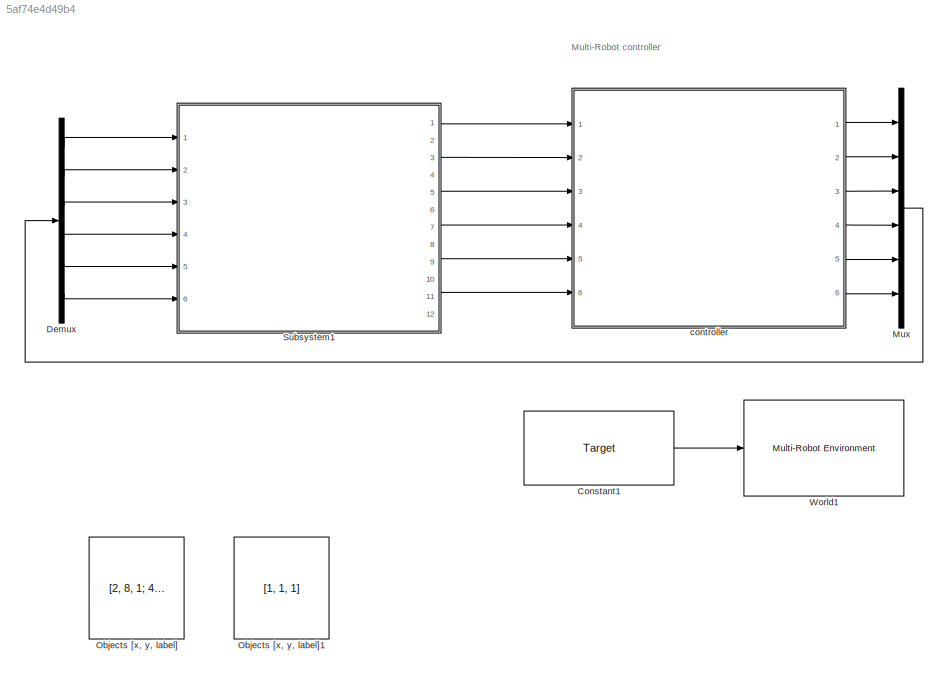
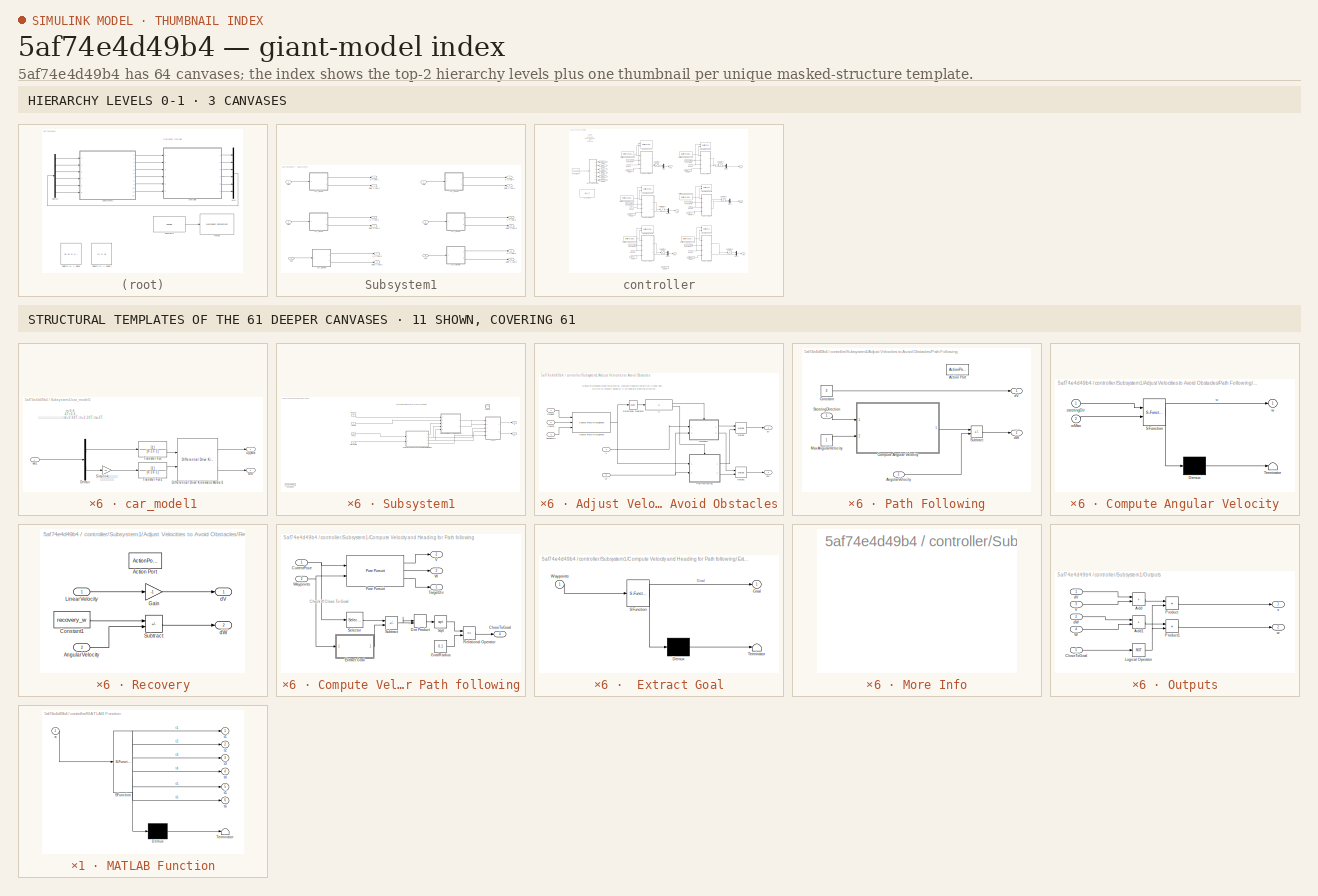
[diagram: thumbnail index - top-2 hierarchy levels (3 canvases) + 11 structural-template representatives of the remaining 61 canvases]
MODEL slx_5af74e4d49b4
KIND model
CONFIG AbsTol = auto
CONFIG EnableMultiTasking = off
CONFIG FixedStep = 0.0001
CONFIG InitFcn = sampleTime = 0.01;\n\n% Robot parameters\nwheelRadius = 0.025;\nrobotRadius = 0.15;\n\n% Lidar parameters\nsensorOffset = [0,0];\nscanAngles = linspace(-pi/3,pi/3,20)';%y = linspace(x1,x2,n) 生成 n 个点。这些点的间距为 (x2-x1)/(n-1)。\nmaxRange = 0.4;\n\n%%%%%%\nks=1;\n\n\n\n\n\nA=0.3;\nC=1.7;\nB=(A+C)/2;\n\nwp1=[A,A; B,A;  C,A; C,B;C,C; B,C; A,C;A,B];    \nbainjie2=[-0.5,-0.5;2.5,-0.5;-0.5,2.5;2.5,2.5;]\nWAY_P=[wp1;wp1;wp1;wp1];\nTar...<+894ch>
CONFIG MaxStep = auto
CONFIG MinStep = auto
CONFIG PreLoadFcn = % Simulation parameters\n%load exampleMap\n\n\n\n
CONFIG RelTol = 1e-3
CONFIG SampleTimeConstraint = Unconstrained
CONFIG SolverName = VariableStepAuto
CONFIG StartTime = 0.0
CONFIG StopTime = inf
BLOCK [Constant] Constant1
  Value = Target
BLOCK [Demux] Demux
  Outputs = 6
  Ports = [1, 6]
BLOCK [Mux] Mux
  DisplayOption = bar
  Inputs = 6
  Ports = [6, 1]
BLOCK [Constant] Objects [x, y, label]
  Value = [2, 8, 1; 4, 9, 1; 3, 7, 3;6.5, 5, 2; 9, 11, 2; 8, 4, 3]
BLOCK [Constant] Objects [x, y, label]1
  Value = [1, 1, 1]
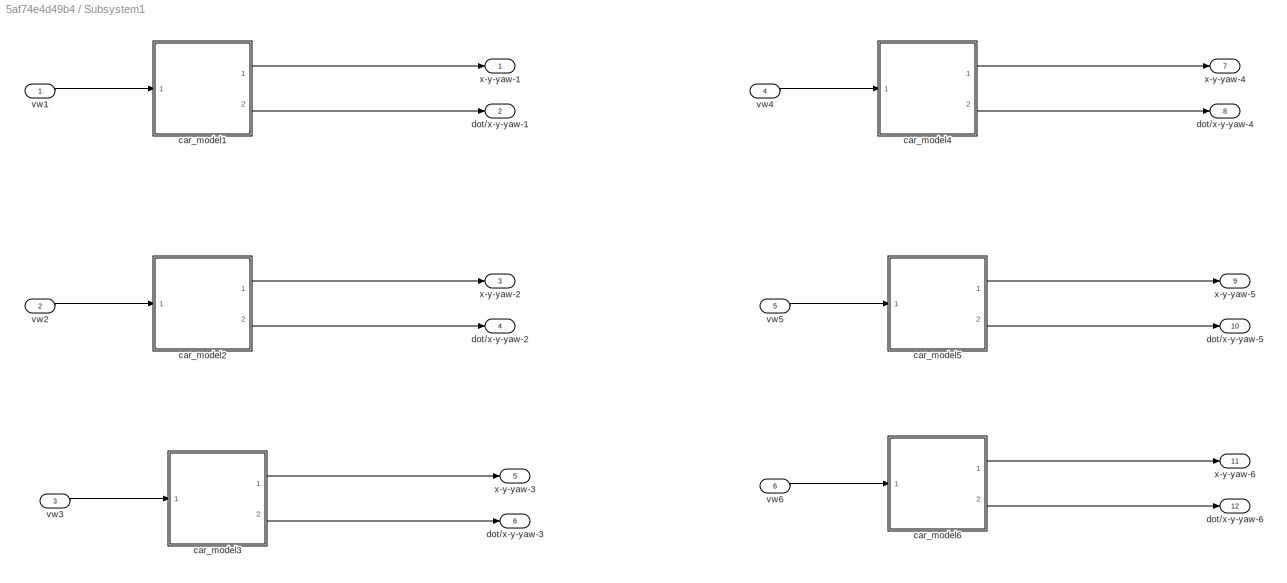
BLOCK [SubSystem] Subsystem1
  Ports = [6, 12]
  RequestExecContextInheritance = off
BLOCK [SubSystem] Subsystem1/car_model1
  Ports = [1, 2]
  RequestExecContextInheritance = off
BLOCK [Demux] Subsystem1/car_model1/Demux
  Outputs = 2
  Ports = [1, 2]
BLOCK [Reference] Subsystem1/car_model1/Differential Drive Kinematic Model1  REF=robotmobilelib/Differential Drive Kinematic Model
  Ports = [2, 2]
  SourceBlock = robotmobilelib/Differential Drive Kinematic Model
  SourceProductBaseCode = RO
  SourceType = Differential Drive Kinematic Model
BLOCK [Gain] Subsystem1/car_model1/Simulink顺时针为正 小车逆时针为正
  Gain = ks
BLOCK [TransferFcn] Subsystem1/car_model1/Transfer Fcn
  Denominator = [0.15 1]
BLOCK [TransferFcn] Subsystem1/car_model1/Transfer Fcn1
  Denominator = [0.16 1]
BLOCK [Outport] Subsystem1/car_model1/dot
  Port = 2
BLOCK [Inport] Subsystem1/car_model1/vw1
BLOCK [Outport] Subsystem1/car_model1/x-y-yaw
BLOCK [SubSystem] Subsystem1/car_model2
  Ports = [1, 2]
  RequestExecContextInheritance = off
BLOCK [Demux] Subsystem1/car_model2/Demux
  Outputs = 2
  Ports = [1, 2]
BLOCK [Reference] Subsystem1/car_model2/Differential Drive Kinematic Model1  REF=robotmobilelib/Differential Drive Kinematic Model
  Ports = [2, 2]
  SourceBlock = robotmobilelib/Differential Drive Kinematic Model
  SourceProductBaseCode = RO
  SourceType = Differential Drive Kinematic Model
BLOCK [Gain] Subsystem1/car_model2/Simulink顺时针为正 小车逆时针为正
  Gain = ks
BLOCK [TransferFcn] Subsystem1/car_model2/Transfer Fcn
  Denominator = [0.15 1]
BLOCK [TransferFcn] Subsystem1/car_model2/Transfer Fcn1
  Denominator = [0.16 1]
BLOCK [Outport] Subsystem1/car_model2/dot
  Port = 2
BLOCK [Inport] Subsystem1/car_model2/vw1
BLOCK [Outport] Subsystem1/car_model2/x-y-yaw
BLOCK [SubSystem] Subsystem1/car_model3
  Ports = [1, 2]
  RequestExecContextInheritance = off
BLOCK [Demux] Subsystem1/car_model3/Demux
  Outputs = 2
  Ports = [1, 2]
BLOCK [Reference] Subsystem1/car_model3/Differential Drive Kinematic Model1  REF=robotmobilelib/Differential Drive Kinematic Model
  Ports = [2, 2]
  SourceBlock = robotmobilelib/Differential Drive Kinematic Model
  SourceProductBaseCode = RO
  SourceType = Differential Drive Kinematic Model
BLOCK [Gain] Subsystem1/car_model3/Simulink顺时针为正 小车逆时针为正
  Gain = ks
BLOCK [TransferFcn] Subsystem1/car_model3/Transfer Fcn
  Denominator = [0.15 1]
BLOCK [TransferFcn] Subsystem1/car_model3/Transfer Fcn1
  Denominator = [0.16 1]
BLOCK [Outport] Subsystem1/car_model3/dot
  Port = 2
BLOCK [Inport] Subsystem1/car_model3/vw1
BLOCK [Outport] Subsystem1/car_model3/x-y-yaw
BLOCK [SubSystem] Subsystem1/car_model4
  Ports = [1, 2]
  RequestExecContextInheritance = off
BLOCK [Demux] Subsystem1/car_model4/Demux
  Outputs = 2
  Ports = [1, 2]
BLOCK [Reference] Subsystem1/car_model4/Differential Drive Kinematic Model1  REF=robotmobilelib/Differential Drive Kinematic Model
  Ports = [2, 2]
  SourceBlock = robotmobilelib/Differential Drive Kinematic Model
  SourceProductBaseCode = RO
  SourceType = Differential Drive Kinematic Model
BLOCK [Gain] Subsystem1/car_model4/Simulink顺时针为正 小车逆时针为正
  Gain = ks
BLOCK [TransferFcn] Subsystem1/car_model4/Transfer Fcn
  Denominator = [0.15 1]
BLOCK [TransferFcn] Subsystem1/car_model4/Transfer Fcn1
  Denominator = [0.16 1]
BLOCK [Outport] Subsystem1/car_model4/dot
  Port = 2
BLOCK [Inport] Subsystem1/car_model4/vw1
BLOCK [Outport] Subsystem1/car_model4/x-y-yaw
BLOCK [SubSystem] Subsystem1/car_model5
  Ports = [1, 2]
  RequestExecContextInheritance = off
BLOCK [Demux] Subsystem1/car_model5/Demux
  Outputs = 2
  Ports = [1, 2]
BLOCK [Reference] Subsystem1/car_model5/Differential Drive Kinematic Model1  REF=robotmobilelib/Differential Drive Kinematic Model
  Ports = [2, 2]
  SourceBlock = robotmobilelib/Differential Drive Kinematic Model
  SourceProductBaseCode = RO
  SourceType = Differential Drive Kinematic Model
BLOCK [Gain] Subsystem1/car_model5/Simulink顺时针为正 小车逆时针为正
  Gain = ks
BLOCK [TransferFcn] Subsystem1/car_model5/Transfer Fcn
  Denominator = [0.15 1]
BLOCK [TransferFcn] Subsystem1/car_model5/Transfer Fcn1
  Denominator = [0.16 1]
BLOCK [Outport] Subsystem1/car_model5/dot
  Port = 2
BLOCK [Inport] Subsystem1/car_model5/vw1
BLOCK [Outport] Subsystem1/car_model5/x-y-yaw
BLOCK [SubSystem] Subsystem1/car_model6
  Ports = [1, 2]
  RequestExecContextInheritance = off
BLOCK [Demux] Subsystem1/car_model6/Demux
  Outputs = 2
  Ports = [1, 2]
BLOCK [Reference] Subsystem1/car_model6/Differential Drive Kinematic Model1  REF=robotmobilelib/Differential Drive Kinematic Model
  Ports = [2, 2]
  SourceBlock = robotmobilelib/Differential Drive Kinematic Model
  SourceProductBaseCode = RO
  SourceType = Differential Drive Kinematic Model
BLOCK [Gain] Subsystem1/car_model6/Simulink顺时针为正 小车逆时针为正
  Gain = ks
BLOCK [TransferFcn] Subsystem1/car_model6/Transfer Fcn
  Denominator = [0.15 1]
BLOCK [TransferFcn] Subsystem1/car_model6/Transfer Fcn1
  Denominator = [0.16 1]
BLOCK [Outport] Subsystem1/car_model6/dot
  Port = 2
BLOCK [Inport] Subsystem1/car_model6/vw1
BLOCK [Outport] Subsystem1/car_model6/x-y-yaw
BLOCK [Outport] Subsystem1/dot//x-y-yaw-1
  Port = 2
BLOCK [Outport] Subsystem1/dot//x-y-yaw-2
  Port = 4
BLOCK [Outport] Subsystem1/dot//x-y-yaw-3
  Port = 6
BLOCK [Outport] Subsystem1/dot//x-y-yaw-4
  Port = 8
BLOCK [Outport] Subsystem1/dot//x-y-yaw-5
  Port = 10
BLOCK [Outport] Subsystem1/dot//x-y-yaw-6
  Port = 12
BLOCK [Inport] Subsystem1/vw1
BLOCK [Inport] Subsystem1/vw2
  Port = 2
BLOCK [Inport] Subsystem1/vw3
  Port = 3
BLOCK [Inport] Subsystem1/vw4
  Port = 4
BLOCK [Inport] Subsystem1/vw5
  Port = 5
BLOCK [Inport] Subsystem1/vw6
  Port = 6
BLOCK [Outport] Subsystem1/x-y-yaw-1
BLOCK [Outport] Subsystem1/x-y-yaw-2
  Port = 3
BLOCK [Outport] Subsystem1/x-y-yaw-3
  Port = 5
BLOCK [Outport] Subsystem1/x-y-yaw-4
  Port = 7
BLOCK [Outport] Subsystem1/x-y-yaw-5
  Port = 9
BLOCK [Outport] Subsystem1/x-y-yaw-6
  Port = 11
BLOCK [Reference] World1  REF=mobileRoboticsLib/Environments/Multi-Robot Environment
  Ports = [1]
  SourceBlock = mobileRoboticsLib/Environments/Multi-Robot Environment
  SourceProductName = Mobile Robotics Simulation Toolbox
  SourceType = Multi-Robot Environment
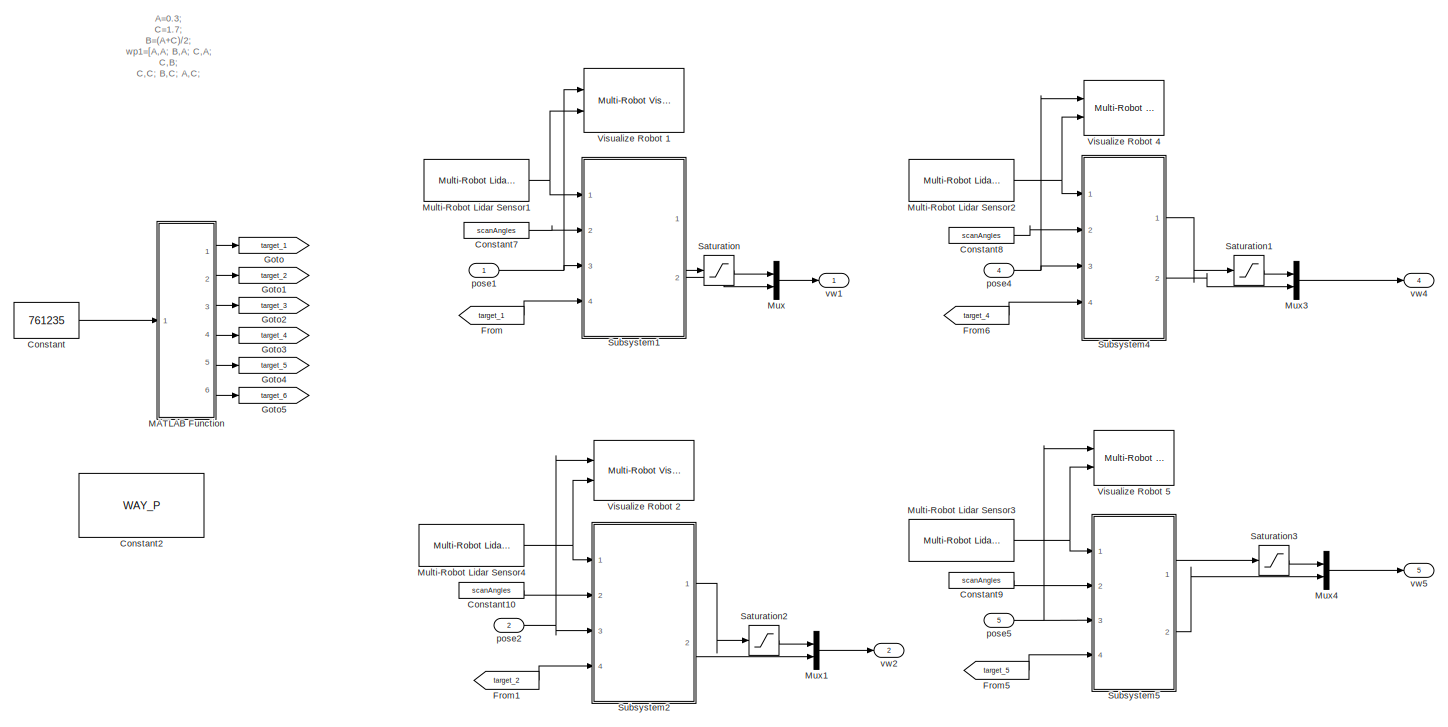
[diagram: controller - part 1/2, full width, top band]
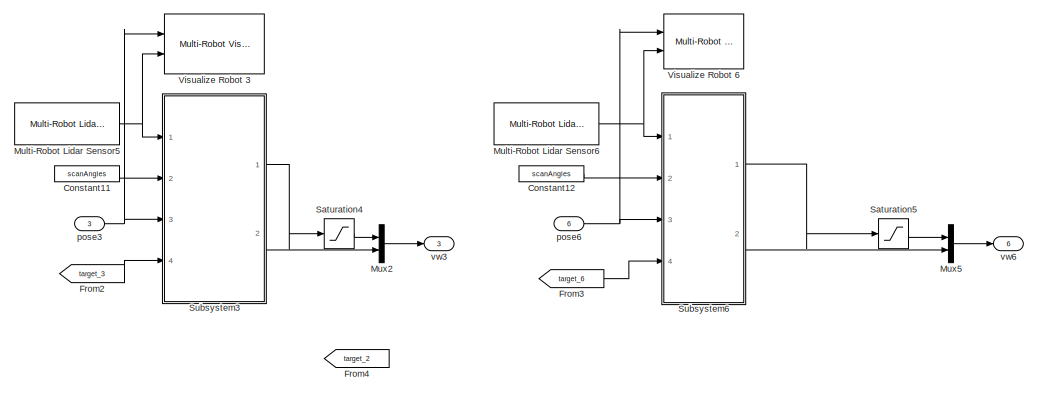
[diagram: controller - part 2/2, bottom center region]
BLOCK [SubSystem] controller
  Ports = [6, 6]
  RequestExecContextInheritance = off
BLOCK [Constant] controller/Constant
  OutDataTypeStr = double
  Value = 761235
BLOCK [Constant] controller/Constant10
  Value = scanAngles
BLOCK [Constant] controller/Constant11
  Value = scanAngles
BLOCK [Constant] controller/Constant12
  Value = scanAngles
BLOCK [Constant] controller/Constant2
  Value = WAY_P
BLOCK [Constant] controller/Constant7
  Value = scanAngles
BLOCK [Constant] controller/Constant8
  Value = scanAngles
BLOCK [Constant] controller/Constant9
  Value = scanAngles
BLOCK [From] controller/From
  GotoTag = target_1
BLOCK [From] controller/From1
  GotoTag = target_2
BLOCK [From] controller/From2
  GotoTag = target_3
BLOCK [From] controller/From3
  GotoTag = target_6
BLOCK [From] controller/From4
  GotoTag = target_2
BLOCK [From] controller/From5
  GotoTag = target_5
BLOCK [From] controller/From6
  GotoTag = target_4
BLOCK [Goto] controller/Goto
  GotoTag = target_1
BLOCK [Goto] controller/Goto1
  GotoTag = target_2
BLOCK [Goto] controller/Goto2
  GotoTag = target_3
BLOCK [Goto] controller/Goto3
  GotoTag = target_4
BLOCK [Goto] controller/Goto4
  GotoTag = target_5
BLOCK [Goto] controller/Goto5
  GotoTag = target_6
BLOCK [SubSystem] controller/MATLAB Function
  ErrorFcn = Stateflow.Translate.translate
  PermitHierarchicalResolution = ExplicitOnly
  Ports = [1, 6]
  RequestExecContextInheritance = off
  SFBlockType = MATLAB Function
  TreatAsAtomicUnit = on
BLOCK [Demux] controller/MATLAB Function/ Demux 
  Outputs = 1
  Ports = [1, 1]
BLOCK [S-Function] controller/MATLAB Function/ SFunction 
  EnableBusSupport = on
  FunctionName = sf_sfun
  PortCounts = [1 7]
  Ports = [1, 7]
  SFcnIsStateOwnerBlock = off
  SFunctionDeploymentMode = off
  Tag = Stateflow S-Function 13
BLOCK [Terminator] controller/MATLAB Function/ Terminator 
BLOCK [Inport] controller/MATLAB Function/a
BLOCK [Outport] controller/MATLAB Function/t1
BLOCK [Outport] controller/MATLAB Function/t2
  Port = 2
BLOCK [Outport] controller/MATLAB Function/t3
  Port = 3
BLOCK [Outport] controller/MATLAB Function/t4
  Port = 4
BLOCK [Outport] controller/MATLAB Function/t5
  Port = 5
BLOCK [Outport] controller/MATLAB Function/t6
  Port = 6
BLOCK [Reference] controller/Multi-Robot Lidar Sensor1  REF=mobileRoboticsLib/Environments/Multi-Robot Lidar Sensor
  Ports = [0, 1]
  SourceBlock = mobileRoboticsLib/Environments/Multi-Robot Lidar Sensor
  SourceProductName = Mobile Robotics Simulation Toolbox
  SourceType = Multi-Robot Lidar Sensor
BLOCK [Reference] controller/Multi-Robot Lidar Sensor2  REF=mobileRoboticsLib/Environments/Multi-Robot Lidar Sensor
  Ports = [0, 1]
  SourceBlock = mobileRoboticsLib/Environments/Multi-Robot Lidar Sensor
  SourceProductName = Mobile Robotics Simulation Toolbox
  SourceType = Multi-Robot Lidar Sensor
BLOCK [Reference] controller/Multi-Robot Lidar Sensor3  REF=mobileRoboticsLib/Environments/Multi-Robot Lidar Sensor
  Ports = [0, 1]
  SourceBlock = mobileRoboticsLib/Environments/Multi-Robot Lidar Sensor
  SourceProductName = Mobile Robotics Simulation Toolbox
  SourceType = Multi-Robot Lidar Sensor
BLOCK [Reference] controller/Multi-Robot Lidar Sensor4  REF=mobileRoboticsLib/Environments/Multi-Robot Lidar Sensor
  Ports = [0, 1]
  SourceBlock = mobileRoboticsLib/Environments/Multi-Robot Lidar Sensor
  SourceProductName = Mobile Robotics Simulation Toolbox
  SourceType = Multi-Robot Lidar Sensor
BLOCK [Reference] controller/Multi-Robot Lidar Sensor5  REF=mobileRoboticsLib/Environments/Multi-Robot Lidar Sensor
  Ports = [0, 1]
  SourceBlock = mobileRoboticsLib/Environments/Multi-Robot Lidar Sensor
  SourceProductName = Mobile Robotics Simulation Toolbox
  SourceType = Multi-Robot Lidar Sensor
BLOCK [Reference] controller/Multi-Robot Lidar Sensor6  REF=mobileRoboticsLib/Environments/Multi-Robot Lidar Sensor
  Ports = [0, 1]
  SourceBlock = mobileRoboticsLib/Environments/Multi-Robot Lidar Sensor
  SourceProductName = Mobile Robotics Simulation Toolbox
  SourceType = Multi-Robot Lidar Sensor
BLOCK [Mux] controller/Mux
  DisplayOption = bar
  Inputs = 2
  Ports = [2, 1]
BLOCK [Mux] controller/Mux1
  DisplayOption = bar
  Inputs = 2
  Ports = [2, 1]
BLOCK [Mux] controller/Mux2
  DisplayOption = bar
  Inputs = 2
  Ports = [2, 1]
BLOCK [Mux] controller/Mux3
  DisplayOption = bar
  Inputs = 2
  Ports = [2, 1]
BLOCK [Mux] controller/Mux4
  DisplayOption = bar
  Inputs = 2
  Ports = [2, 1]
BLOCK [Mux] controller/Mux5
  DisplayOption = bar
  Inputs = 2
  Ports = [2, 1]
BLOCK [Saturate] controller/Saturation
  LowerLimit = 0
  UpperLimit = 1
BLOCK [Saturate] controller/Saturation1
  LowerLimit = 0
  UpperLimit = 1
BLOCK [Saturate] controller/Saturation2
  LowerLimit = 0
  UpperLimit = 1
BLOCK [Saturate] controller/Saturation3
  LowerLimit = 0
  UpperLimit = 1
BLOCK [Saturate] controller/Saturation4
  LowerLimit = 0
  UpperLimit = 1
BLOCK [Saturate] controller/Saturation5
  LowerLimit = 0
  UpperLimit = 1
BLOCK [SubSystem] controller/Subsystem1
  Ports = [4, 2]
  RequestExecContextInheritance = off
BLOCK [SubSystem] controller/Subsystem1/Adjust Velocities to Avoid Obstacles
  Ports = [5, 2]
  RequestExecContextInheritance = off
BLOCK [Inport] controller/Subsystem1/Adjust Velocities to Avoid Obstacles/Angles
  Port = 2
BLOCK [If] controller/Subsystem1/Adjust Velocities to Avoid Obstacles/If
  IfExpression = u1 == 1
  Ports = [1, 2]
BLOCK [Merge] controller/Subsystem1/Adjust Velocities to Avoid Obstacles/Merge
  Ports = [2, 1]
BLOCK [Merge] controller/Subsystem1/Adjust Velocities to Avoid Obstacles/Merge1
  Ports = [2, 1]
BLOCK [SubSystem] controller/Subsystem1/Adjust Velocities to Avoid Obstacles/Path Following
  Ports = [2, 2, 0, 0, 0, 0, 0, 1]
  RequestExecContextInheritance = off
  TreatAsAtomicUnit = on
BLOCK [ActionPort] controller/Subsystem1/Adjust Velocities to Avoid Obstacles/Path Following/Action Port
  ActionPortLabel = else
BLOCK [Inport] controller/Subsystem1/Adjust Velocities to Avoid Obstacles/Path Following/AngularVelocity
  Port = 2
BLOCK [SubSystem] controller/Subsystem1/Adjust Velocities to Avoid Obstacles/Path Following/Compute Angular Velocity
  ErrorFcn = Stateflow.Translate.translate
  PermitHierarchicalResolution = ExplicitOnly
  Ports = [2, 1]
  RequestExecContextInheritance = off
  SFBlockType = MATLAB Function
  TreatAsAtomicUnit = on
BLOCK [Demux] controller/Subsystem1/Adjust Velocities to Avoid Obstacles/Path Following/Compute Angular Velocity/ Demux 
  Outputs = 1
  Ports = [1, 1]
BLOCK [S-Function] controller/Subsystem1/Adjust Velocities to Avoid Obstacles/Path Following/Compute Angular Velocity/ SFunction 
  EnableBusSupport = on
  FunctionName = sf_sfun
  PortCounts = [2 2]
  Ports = [2, 2]
  SFcnIsStateOwnerBlock = off
  SFunctionDeploymentMode = off
  Tag = Stateflow S-Function 2
BLOCK [Terminator] controller/Subsystem1/Adjust Velocities to Avoid Obstacles/Path Following/Compute Angular Velocity/ Terminator 
BLOCK [Inport] controller/Subsystem1/Adjust Velocities to Avoid Obstacles/Path Following/Compute Angular Velocity/steeringDir
BLOCK [Outport] controller/Subsystem1/Adjust Velocities to Avoid Obstacles/Path Following/Compute Angular Velocity/w
  VectorParamsAs1DForOutWhenUnconnected = off
BLOCK [Inport] controller/Subsystem1/Adjust Velocities to Avoid Obstacles/Path Following/Compute Angular Velocity/wMax
  Port = 2
BLOCK [Constant] controller/Subsystem1/Adjust Velocities to Avoid Obstacles/Path Following/Constant
  Value = 0
BLOCK [Constant] controller/Subsystem1/Adjust Velocities to Avoid Obstacles/Path Following/MaxAngularVelocity
BLOCK [Inport] controller/Subsystem1/Adjust Velocities to Avoid Obstacles/Path Following/SteeringDirection
BLOCK [Sum] controller/Subsystem1/Adjust Velocities to Avoid Obstacles/Path Following/Subtract
  IconShape = rectangular
  Inputs = +-
  Ports = [2, 1]
BLOCK [Outport] controller/Subsystem1/Adjust Velocities to Avoid Obstacles/Path Following/dV
  VectorParamsAs1DForOutWhenUnconnected = off
BLOCK [Outport] controller/Subsystem1/Adjust Velocities to Avoid Obstacles/Path Following/dW
  Port = 2
  VectorParamsAs1DForOutWhenUnconnected = off
BLOCK [Inport] controller/Subsystem1/Adjust Velocities to Avoid Obstacles/Ranges
BLOCK [SubSystem] controller/Subsystem1/Adjust Velocities to Avoid Obstacles/Recovery
  Ports = [2, 2, 0, 0, 0, 0, 0, 1]
  RequestExecContextInheritance = off
  TreatAsAtomicUnit = on
BLOCK [ActionPort] controller/Subsystem1/Adjust Velocities to Avoid Obstacles/Recovery/Action Port
  ActionPortLabel = if(u1 == 1)
BLOCK [Inport] controller/Subsystem1/Adjust Velocities to Avoid Obstacles/Recovery/AngularVelocity
  Port = 2
BLOCK [Constant] controller/Subsystem1/Adjust Velocities to Avoid Obstacles/Recovery/Constant1
  Value = recovery_w
BLOCK [Gain] controller/Subsystem1/Adjust Velocities to Avoid Obstacles/Recovery/Gain
  Gain = -1
BLOCK [Inport] controller/Subsystem1/Adjust Velocities to Avoid Obstacles/Recovery/LinearVelocity
BLOCK [Sum] controller/Subsystem1/Adjust Velocities to Avoid Obstacles/Recovery/Subtract
  IconShape = rectangular
  Inputs = +-
  Ports = [2, 1]
BLOCK [Outport] controller/Subsystem1/Adjust Velocities to Avoid Obstacles/Recovery/dV
  VectorParamsAs1DForOutWhenUnconnected = off
BLOCK [Outport] controller/Subsystem1/Adjust Velocities to Avoid Obstacles/Recovery/dW
  Port = 2
  VectorParamsAs1DForOutWhenUnconnected = off
BLOCK [RelationalOperator] controller/Subsystem1/Adjust Velocities to Avoid Obstacles/Relational Operator
  InputSameDT = off
  Operator = isNaN
  OutDataTypeStr = boolean
  Ports = [1, 1]
  RndMeth = Simplest
BLOCK [Inport] controller/Subsystem1/Adjust Velocities to Avoid Obstacles/TargetDir
  Port = 3
BLOCK [Inport] controller/Subsystem1/Adjust Velocities to Avoid Obstacles/V
  Port = 4
BLOCK [Reference] controller/Subsystem1/Adjust Velocities to Avoid Obstacles/Vector Field Histogram  REF=robotalgslib/Vector Field Histogram
  Ports = [3, 1]
  SourceBlock = robotalgslib/Vector Field Histogram
  SourceProductBaseCode = NV,RO
  SourceType = nav.slalgs.internal.VectorFieldHistogram
BLOCK [Inport] controller/Subsystem1/Adjust Velocities to Avoid Obstacles/W
  Port = 5
BLOCK [Outport] controller/Subsystem1/Adjust Velocities to Avoid Obstacles/dV
  VectorParamsAs1DForOutWhenUnconnected = off
BLOCK [Outport] controller/Subsystem1/Adjust Velocities to Avoid Obstacles/dW
  Port = 2
  VectorParamsAs1DForOutWhenUnconnected = off
BLOCK [Inport] controller/Subsystem1/Angels
  Port = 2
BLOCK [SubSystem] controller/Subsystem1/Compute Velocity and Heading for Path following
  Ports = [2, 4]
  RequestExecContextInheritance = off
BLOCK [SubSystem] controller/Subsystem1/Compute Velocity and Heading for Path following/ Extract Goal
  ErrorFcn = Stateflow.Translate.translate
  PermitHierarchicalResolution = ExplicitOnly
  Ports = [1, 1]
  RequestExecContextInheritance = off
  SFBlockType = MATLAB Function
  TreatAsAtomicUnit = on
BLOCK [Demux] controller/Subsystem1/Compute Velocity and Heading for Path following/ Extract Goal/ Demux 
  Outputs = 1
  Ports = [1, 1]
BLOCK [S-Function] controller/Subsystem1/Compute Velocity and Heading for Path following/ Extract Goal/ SFunction 
  EnableBusSupport = on
  FunctionName = sf_sfun
  PortCounts = [1 2]
  Ports = [1, 2]
  SFcnIsStateOwnerBlock = off
  SFunctionDeploymentMode = off
  Tag = Stateflow S-Function 3
BLOCK [Terminator] controller/Subsystem1/Compute Velocity and Heading for Path following/ Extract Goal/ Terminator 
BLOCK [Outport] controller/Subsystem1/Compute Velocity and Heading for Path following/ Extract Goal/Goal
  VectorParamsAs1DForOutWhenUnconnected = off
BLOCK [Inport] controller/Subsystem1/Compute Velocity and Heading for Path following/ Extract Goal/Waypoints
BLOCK [Outport] controller/Subsystem1/Compute Velocity and Heading for Path following/CloseToGoal
  Port = 4
  VectorParamsAs1DForOutWhenUnconnected = off
BLOCK [Inport] controller/Subsystem1/Compute Velocity and Heading for Path following/CurrentPose
BLOCK [DotProduct] controller/Subsystem1/Compute Velocity and Heading for Path following/Dot Product
  OutDataTypeStr = Inherit: Inherit via internal rule
BLOCK [Constant] controller/Subsystem1/Compute Velocity and Heading for Path following/GoalRadius
  Value = 0.1
BLOCK [Reference] controller/Subsystem1/Compute Velocity and Heading for Path following/Pure Pursuit  REF=robotalgslib/Pure Pursuit
  Ports = [2, 3]
  SourceBlock = robotalgslib/Pure Pursuit
  SourceProductBaseCode = NV,RO
  SourceType = nav.slalgs.internal.PurePursuit
BLOCK [RelationalOperator] controller/Subsystem1/Compute Velocity and Heading for Path following/Relational Operator
  InputSameDT = off
  Operator = <=
  OutDataTypeStr = boolean
  Ports = [2, 1]
  RndMeth = Simplest
BLOCK [Selector] controller/Subsystem1/Compute Velocity and Heading for Path following/Selector
  IndexOptions = Index vector (dialog)
  Indices = [1 2]
  InputPortWidth = 3
  OutputSizes = 1
  Ports = [1, 1]
BLOCK [Sqrt] controller/Subsystem1/Compute Velocity and Heading for Path following/Sqrt
BLOCK [Sum] controller/Subsystem1/Compute Velocity and Heading for Path following/Subtract
  IconShape = rectangular
  Inputs = +-
  Ports = [2, 1]
BLOCK [Outport] controller/Subsystem1/Compute Velocity and Heading for Path following/TargetDir
  VectorParamsAs1DForOutWhenUnconnected = off
BLOCK [Outport] controller/Subsystem1/Compute Velocity and Heading for Path following/V
  Port = 2
  VectorParamsAs1DForOutWhenUnconnected = off
BLOCK [Outport] controller/Subsystem1/Compute Velocity and Heading for Path following/W
  Port = 3
  VectorParamsAs1DForOutWhenUnconnected = off
BLOCK [Inport] controller/Subsystem1/Compute Velocity and Heading for Path following/Waypoints
  Port = 2
BLOCK [Constant] controller/Subsystem1/Constant1
  Value = scanAngles
BLOCK [SubSystem] controller/Subsystem1/More Info
  OpenFcn = showdemo(bdroot(gcb))
  Ports = []
  RequestExecContextInheritance = off
BLOCK [SubSystem] controller/Subsystem1/Outputs
  Ports = [5, 2]
  RequestExecContextInheritance = off
BLOCK [Sum] controller/Subsystem1/Outputs/Add
  IconShape = rectangular
  Ports = [2, 1]
BLOCK [Sum] controller/Subsystem1/Outputs/Add1
  IconShape = rectangular
  Ports = [2, 1]
BLOCK [Inport] controller/Subsystem1/Outputs/CloseToGoal
  Port = 5
BLOCK [Logic] controller/Subsystem1/Outputs/Logical Operator
  AllPortsSameDT = off
  Operator = NOT
  OutDataTypeStr = boolean
  Ports = [1, 1]
BLOCK [Product] controller/Subsystem1/Outputs/Product
  Ports = [2, 1]
BLOCK [Product] controller/Subsystem1/Outputs/Product1
  Ports = [2, 1]
BLOCK [Inport] controller/Subsystem1/Outputs/V
  Port = 3
BLOCK [Inport] controller/Subsystem1/Outputs/W
  Port = 4
BLOCK [Inport] controller/Subsystem1/Outputs/dV
BLOCK [Inport] controller/Subsystem1/Outputs/dW
  Port = 2
BLOCK [Outport] controller/Subsystem1/Outputs/v
BLOCK [Outport] controller/Subsystem1/Outputs/w
  Port = 2
BLOCK [Inport] controller/Subsystem1/Pose
  Port = 3
BLOCK [Inport] controller/Subsystem1/Ranges
BLOCK [Inport] controller/Subsystem1/WayPoints
  Port = 4
BLOCK [Outport] controller/Subsystem1/v
BLOCK [Outport] controller/Subsystem1/w
  Port = 2
BLOCK [SubSystem] controller/Subsystem2
  Ports = [4, 2]
  RequestExecContextInheritance = off
BLOCK [SubSystem] controller/Subsystem2/Adjust Velocities to Avoid Obstacles
  Ports = [5, 2]
  RequestExecContextInheritance = off
BLOCK [Inport] controller/Subsystem2/Adjust Velocities to Avoid Obstacles/Angles
  Port = 2
BLOCK [If] controller/Subsystem2/Adjust Velocities to Avoid Obstacles/If
  IfExpression = u1 == 1
  Ports = [1, 2]
BLOCK [Merge] controller/Subsystem2/Adjust Velocities to Avoid Obstacles/Merge
  Ports = [2, 1]
BLOCK [Merge] controller/Subsystem2/Adjust Velocities to Avoid Obstacles/Merge1
  Ports = [2, 1]
BLOCK [SubSystem] controller/Subsystem2/Adjust Velocities to Avoid Obstacles/Path Following
  Ports = [2, 2, 0, 0, 0, 0, 0, 1]
  RequestExecContextInheritance = off
  TreatAsAtomicUnit = on
BLOCK [ActionPort] controller/Subsystem2/Adjust Velocities to Avoid Obstacles/Path Following/Action Port
  ActionPortLabel = else
BLOCK [Inport] controller/Subsystem2/Adjust Velocities to Avoid Obstacles/Path Following/AngularVelocity
  Port = 2
BLOCK [SubSystem] controller/Subsystem2/Adjust Velocities to Avoid Obstacles/Path Following/Compute Angular Velocity
  ErrorFcn = Stateflow.Translate.translate
  PermitHierarchicalResolution = ExplicitOnly
  Ports = [2, 1]
  RequestExecContextInheritance = off
  SFBlockType = MATLAB Function
  TreatAsAtomicUnit = on
BLOCK [Demux] controller/Subsystem2/Adjust Velocities to Avoid Obstacles/Path Following/Compute Angular Velocity/ Demux 
  Outputs = 1
  Ports = [1, 1]
BLOCK [S-Function] controller/Subsystem2/Adjust Velocities to Avoid Obstacles/Path Following/Compute Angular Velocity/ SFunction 
  EnableBusSupport = on
  FunctionName = sf_sfun
  PortCounts = [2 2]
  Ports = [2, 2]
  SFcnIsStateOwnerBlock = off
  SFunctionDeploymentMode = off
  Tag = Stateflow S-Function 1
BLOCK [Terminator] controller/Subsystem2/Adjust Velocities to Avoid Obstacles/Path Following/Compute Angular Velocity/ Terminator 
BLOCK [Inport] controller/Subsystem2/Adjust Velocities to Avoid Obstacles/Path Following/Compute Angular Velocity/steeringDir
BLOCK [Outport] controller/Subsystem2/Adjust Velocities to Avoid Obstacles/Path Following/Compute Angular Velocity/w
  VectorParamsAs1DForOutWhenUnconnected = off
BLOCK [Inport] controller/Subsystem2/Adjust Velocities to Avoid Obstacles/Path Following/Compute Angular Velocity/wMax
  Port = 2
BLOCK [Constant] controller/Subsystem2/Adjust Velocities to Avoid Obstacles/Path Following/Constant
  Value = 0
BLOCK [Constant] controller/Subsystem2/Adjust Velocities to Avoid Obstacles/Path Following/MaxAngularVelocity
BLOCK [Inport] controller/Subsystem2/Adjust Velocities to Avoid Obstacles/Path Following/SteeringDirection
BLOCK [Sum] controller/Subsystem2/Adjust Velocities to Avoid Obstacles/Path Following/Subtract
  IconShape = rectangular
  Inputs = +-
  Ports = [2, 1]
BLOCK [Outport] controller/Subsystem2/Adjust Velocities to Avoid Obstacles/Path Following/dV
  VectorParamsAs1DForOutWhenUnconnected = off
BLOCK [Outport] controller/Subsystem2/Adjust Velocities to Avoid Obstacles/Path Following/dW
  Port = 2
  VectorParamsAs1DForOutWhenUnconnected = off
BLOCK [Inport] controller/Subsystem2/Adjust Velocities to Avoid Obstacles/Ranges
BLOCK [SubSystem] controller/Subsystem2/Adjust Velocities to Avoid Obstacles/Recovery
  Ports = [2, 2, 0, 0, 0, 0, 0, 1]
  RequestExecContextInheritance = off
  TreatAsAtomicUnit = on
BLOCK [ActionPort] controller/Subsystem2/Adjust Velocities to Avoid Obstacles/Recovery/Action Port
  ActionPortLabel = if(u1 == 1)
BLOCK [Inport] controller/Subsystem2/Adjust Velocities to Avoid Obstacles/Recovery/AngularVelocity
  Port = 2
BLOCK [Constant] controller/Subsystem2/Adjust Velocities to Avoid Obstacles/Recovery/Constant1
  Value = recovery_w
BLOCK [Gain] controller/Subsystem2/Adjust Velocities to Avoid Obstacles/Recovery/Gain
  Gain = -1
BLOCK [Inport] controller/Subsystem2/Adjust Velocities to Avoid Obstacles/Recovery/LinearVelocity
BLOCK [Sum] controller/Subsystem2/Adjust Velocities to Avoid Obstacles/Recovery/Subtract
  IconShape = rectangular
  Inputs = +-
  Ports = [2, 1]
BLOCK [Outport] controller/Subsystem2/Adjust Velocities to Avoid Obstacles/Recovery/dV
  VectorParamsAs1DForOutWhenUnconnected = off
BLOCK [Outport] controller/Subsystem2/Adjust Velocities to Avoid Obstacles/Recovery/dW
  Port = 2
  VectorParamsAs1DForOutWhenUnconnected = off
BLOCK [RelationalOperator] controller/Subsystem2/Adjust Velocities to Avoid Obstacles/Relational Operator
  InputSameDT = off
  Operator = isNaN
  OutDataTypeStr = boolean
  Ports = [1, 1]
  RndMeth = Simplest
BLOCK [Inport] controller/Subsystem2/Adjust Velocities to Avoid Obstacles/TargetDir
  Port = 3
BLOCK [Inport] controller/Subsystem2/Adjust Velocities to Avoid Obstacles/V
  Port = 4
BLOCK [Reference] controller/Subsystem2/Adjust Velocities to Avoid Obstacles/Vector Field Histogram  REF=robotalgslib/Vector Field Histogram
  Ports = [3, 1]
  SourceBlock = robotalgslib/Vector Field Histogram
  SourceProductBaseCode = NV,RO
  SourceType = nav.slalgs.internal.VectorFieldHistogram
BLOCK [Inport] controller/Subsystem2/Adjust Velocities to Avoid Obstacles/W
  Port = 5
BLOCK [Outport] controller/Subsystem2/Adjust Velocities to Avoid Obstacles/dV
  VectorParamsAs1DForOutWhenUnconnected = off
BLOCK [Outport] controller/Subsystem2/Adjust Velocities to Avoid Obstacles/dW
  Port = 2
  VectorParamsAs1DForOutWhenUnconnected = off
BLOCK [Inport] controller/Subsystem2/Angels
  Port = 2
BLOCK [SubSystem] controller/Subsystem2/Compute Velocity and Heading for Path following
  Ports = [2, 4]
  RequestExecContextInheritance = off
BLOCK [SubSystem] controller/Subsystem2/Compute Velocity and Heading for Path following/ Extract Goal
  ErrorFcn = Stateflow.Translate.translate
  PermitHierarchicalResolution = ExplicitOnly
  Ports = [1, 1]
  RequestExecContextInheritance = off
  SFBlockType = MATLAB Function
  TreatAsAtomicUnit = on
BLOCK [Demux] controller/Subsystem2/Compute Velocity and Heading for Path following/ Extract Goal/ Demux 
  Outputs = 1
  Ports = [1, 1]
BLOCK [S-Function] controller/Subsystem2/Compute Velocity and Heading for Path following/ Extract Goal/ SFunction 
  EnableBusSupport = on
  FunctionName = sf_sfun
  PortCounts = [1 2]
  Ports = [1, 2]
  SFcnIsStateOwnerBlock = off
  SFunctionDeploymentMode = off
  Tag = Stateflow S-Function 4
BLOCK [Terminator] controller/Subsystem2/Compute Velocity and Heading for Path following/ Extract Goal/ Terminator 
BLOCK [Outport] controller/Subsystem2/Compute Velocity and Heading for Path following/ Extract Goal/Goal
  VectorParamsAs1DForOutWhenUnconnected = off
BLOCK [Inport] controller/Subsystem2/Compute Velocity and Heading for Path following/ Extract Goal/Waypoints
BLOCK [Outport] controller/Subsystem2/Compute Velocity and Heading for Path following/CloseToGoal
  Port = 4
  VectorParamsAs1DForOutWhenUnconnected = off
BLOCK [Inport] controller/Subsystem2/Compute Velocity and Heading for Path following/CurrentPose
BLOCK [DotProduct] controller/Subsystem2/Compute Velocity and Heading for Path following/Dot Product
  OutDataTypeStr = Inherit: Inherit via internal rule
BLOCK [Constant] controller/Subsystem2/Compute Velocity and Heading for Path following/GoalRadius
  Value = 0.1
BLOCK [Reference] controller/Subsystem2/Compute Velocity and Heading for Path following/Pure Pursuit  REF=robotalgslib/Pure Pursuit
  Ports = [2, 3]
  SourceBlock = robotalgslib/Pure Pursuit
  SourceProductBaseCode = NV,RO
  SourceType = nav.slalgs.internal.PurePursuit
BLOCK [RelationalOperator] controller/Subsystem2/Compute Velocity and Heading for Path following/Relational Operator
  InputSameDT = off
  Operator = <=
  OutDataTypeStr = boolean
  Ports = [2, 1]
  RndMeth = Simplest
BLOCK [Selector] controller/Subsystem2/Compute Velocity and Heading for Path following/Selector
  IndexOptions = Index vector (dialog)
  Indices = [1 2]
  InputPortWidth = 3
  OutputSizes = 1
  Ports = [1, 1]
BLOCK [Sqrt] controller/Subsystem2/Compute Velocity and Heading for Path following/Sqrt
BLOCK [Sum] controller/Subsystem2/Compute Velocity and Heading for Path following/Subtract
  IconShape = rectangular
  Inputs = +-
  Ports = [2, 1]
BLOCK [Outport] controller/Subsystem2/Compute Velocity and Heading for Path following/TargetDir
  VectorParamsAs1DForOutWhenUnconnected = off
BLOCK [Outport] controller/Subsystem2/Compute Velocity and Heading for Path following/V
  Port = 2
  VectorParamsAs1DForOutWhenUnconnected = off
BLOCK [Outport] controller/Subsystem2/Compute Velocity and Heading for Path following/W
  Port = 3
  VectorParamsAs1DForOutWhenUnconnected = off
BLOCK [Inport] controller/Subsystem2/Compute Velocity and Heading for Path following/Waypoints
  Port = 2
BLOCK [Constant] controller/Subsystem2/Constant1
  Value = scanAngles
BLOCK [SubSystem] controller/Subsystem2/More Info
  OpenFcn = showdemo(bdroot(gcb))
  Ports = []
  RequestExecContextInheritance = off
BLOCK [SubSystem] controller/Subsystem2/Outputs
  Ports = [5, 2]
  RequestExecContextInheritance = off
BLOCK [Sum] controller/Subsystem2/Outputs/Add
  IconShape = rectangular
  Ports = [2, 1]
BLOCK [Sum] controller/Subsystem2/Outputs/Add1
  IconShape = rectangular
  Ports = [2, 1]
BLOCK [Inport] controller/Subsystem2/Outputs/CloseToGoal
  Port = 5
BLOCK [Logic] controller/Subsystem2/Outputs/Logical Operator
  AllPortsSameDT = off
  Operator = NOT
  OutDataTypeStr = boolean
  Ports = [1, 1]
BLOCK [Product] controller/Subsystem2/Outputs/Product
  Ports = [2, 1]
BLOCK [Product] controller/Subsystem2/Outputs/Product1
  Ports = [2, 1]
BLOCK [Inport] controller/Subsystem2/Outputs/V
  Port = 3
BLOCK [Inport] controller/Subsystem2/Outputs/W
  Port = 4
BLOCK [Inport] controller/Subsystem2/Outputs/dV
BLOCK [Inport] controller/Subsystem2/Outputs/dW
  Port = 2
BLOCK [Outport] controller/Subsystem2/Outputs/v
BLOCK [Outport] controller/Subsystem2/Outputs/w
  Port = 2
BLOCK [Inport] controller/Subsystem2/Pose
  Port = 3
BLOCK [Inport] controller/Subsystem2/Ranges
BLOCK [Inport] controller/Subsystem2/WayPoints
  Port = 4
BLOCK [Outport] controller/Subsystem2/v
BLOCK [Outport] controller/Subsystem2/w
  Port = 2
BLOCK [SubSystem] controller/Subsystem3
  Ports = [4, 2]
  RequestExecContextInheritance = off
BLOCK [SubSystem] controller/Subsystem3/Adjust Velocities to Avoid Obstacles
  Ports = [5, 2]
  RequestExecContextInheritance = off
BLOCK [Inport] controller/Subsystem3/Adjust Velocities to Avoid Obstacles/Angles
  Port = 2
BLOCK [If] controller/Subsystem3/Adjust Velocities to Avoid Obstacles/If
  IfExpression = u1 == 1
  Ports = [1, 2]
BLOCK [Merge] controller/Subsystem3/Adjust Velocities to Avoid Obstacles/Merge
  Ports = [2, 1]
BLOCK [Merge] controller/Subsystem3/Adjust Velocities to Avoid Obstacles/Merge1
  Ports = [2, 1]
BLOCK [SubSystem] controller/Subsystem3/Adjust Velocities to Avoid Obstacles/Path Following
  Ports = [2, 2, 0, 0, 0, 0, 0, 1]
  RequestExecContextInheritance = off
  TreatAsAtomicUnit = on
BLOCK [ActionPort] controller/Subsystem3/Adjust Velocities to Avoid Obstacles/Path Following/Action Port
  ActionPortLabel = else
BLOCK [Inport] controller/Subsystem3/Adjust Velocities to Avoid Obstacles/Path Following/AngularVelocity
  Port = 2
BLOCK [SubSystem] controller/Subsystem3/Adjust Velocities to Avoid Obstacles/Path Following/Compute Angular Velocity
  ErrorFcn = Stateflow.Translate.translate
  PermitHierarchicalResolution = ExplicitOnly
  Ports = [2, 1]
  RequestExecContextInheritance = off
  SFBlockType = MATLAB Function
  TreatAsAtomicUnit = on
BLOCK [Demux] controller/Subsystem3/Adjust Velocities to Avoid Obstacles/Path Following/Compute Angular Velocity/ Demux 
  Outputs = 1
  Ports = [1, 1]
BLOCK [S-Function] controller/Subsystem3/Adjust Velocities to Avoid Obstacles/Path Following/Compute Angular Velocity/ SFunction 
  EnableBusSupport = on
  FunctionName = sf_sfun
  PortCounts = [2 2]
  Ports = [2, 2]
  SFcnIsStateOwnerBlock = off
  SFunctionDeploymentMode = off
  Tag = Stateflow S-Function 5
BLOCK [Terminator] controller/Subsystem3/Adjust Velocities to Avoid Obstacles/Path Following/Compute Angular Velocity/ Terminator 
BLOCK [Inport] controller/Subsystem3/Adjust Velocities to Avoid Obstacles/Path Following/Compute Angular Velocity/steeringDir
BLOCK [Outport] controller/Subsystem3/Adjust Velocities to Avoid Obstacles/Path Following/Compute Angular Velocity/w
  VectorParamsAs1DForOutWhenUnconnected = off
BLOCK [Inport] controller/Subsystem3/Adjust Velocities to Avoid Obstacles/Path Following/Compute Angular Velocity/wMax
  Port = 2
BLOCK [Constant] controller/Subsystem3/Adjust Velocities to Avoid Obstacles/Path Following/Constant
  Value = 0
BLOCK [Constant] controller/Subsystem3/Adjust Velocities to Avoid Obstacles/Path Following/MaxAngularVelocity
BLOCK [Inport] controller/Subsystem3/Adjust Velocities to Avoid Obstacles/Path Following/SteeringDirection
BLOCK [Sum] controller/Subsystem3/Adjust Velocities to Avoid Obstacles/Path Following/Subtract
  IconShape = rectangular
  Inputs = +-
  Ports = [2, 1]
BLOCK [Outport] controller/Subsystem3/Adjust Velocities to Avoid Obstacles/Path Following/dV
  VectorParamsAs1DForOutWhenUnconnected = off
BLOCK [Outport] controller/Subsystem3/Adjust Velocities to Avoid Obstacles/Path Following/dW
  Port = 2
  VectorParamsAs1DForOutWhenUnconnected = off
BLOCK [Inport] controller/Subsystem3/Adjust Velocities to Avoid Obstacles/Ranges
BLOCK [SubSystem] controller/Subsystem3/Adjust Velocities to Avoid Obstacles/Recovery
  Ports = [2, 2, 0, 0, 0, 0, 0, 1]
  RequestExecContextInheritance = off
  TreatAsAtomicUnit = on
BLOCK [ActionPort] controller/Subsystem3/Adjust Velocities to Avoid Obstacles/Recovery/Action Port
  ActionPortLabel = if(u1 == 1)
BLOCK [Inport] controller/Subsystem3/Adjust Velocities to Avoid Obstacles/Recovery/AngularVelocity
  Port = 2
BLOCK [Constant] controller/Subsystem3/Adjust Velocities to Avoid Obstacles/Recovery/Constant1
  Value = recovery_w
BLOCK [Gain] controller/Subsystem3/Adjust Velocities to Avoid Obstacles/Recovery/Gain
  Gain = -1
BLOCK [Inport] controller/Subsystem3/Adjust Velocities to Avoid Obstacles/Recovery/LinearVelocity
BLOCK [Sum] controller/Subsystem3/Adjust Velocities to Avoid Obstacles/Recovery/Subtract
  IconShape = rectangular
  Inputs = +-
  Ports = [2, 1]
BLOCK [Outport] controller/Subsystem3/Adjust Velocities to Avoid Obstacles/Recovery/dV
  VectorParamsAs1DForOutWhenUnconnected = off
BLOCK [Outport] controller/Subsystem3/Adjust Velocities to Avoid Obstacles/Recovery/dW
  Port = 2
  VectorParamsAs1DForOutWhenUnconnected = off
BLOCK [RelationalOperator] controller/Subsystem3/Adjust Velocities to Avoid Obstacles/Relational Operator
  InputSameDT = off
  Operator = isNaN
  OutDataTypeStr = boolean
  Ports = [1, 1]
  RndMeth = Simplest
BLOCK [Inport] controller/Subsystem3/Adjust Velocities to Avoid Obstacles/TargetDir
  Port = 3
BLOCK [Inport] controller/Subsystem3/Adjust Velocities to Avoid Obstacles/V
  Port = 4
BLOCK [Reference] controller/Subsystem3/Adjust Velocities to Avoid Obstacles/Vector Field Histogram  REF=robotalgslib/Vector Field Histogram
  Ports = [3, 1]
  SourceBlock = robotalgslib/Vector Field Histogram
  SourceProductBaseCode = NV,RO
  SourceType = nav.slalgs.internal.VectorFieldHistogram
BLOCK [Inport] controller/Subsystem3/Adjust Velocities to Avoid Obstacles/W
  Port = 5
BLOCK [Outport] controller/Subsystem3/Adjust Velocities to Avoid Obstacles/dV
  VectorParamsAs1DForOutWhenUnconnected = off
BLOCK [Outport] controller/Subsystem3/Adjust Velocities to Avoid Obstacles/dW
  Port = 2
  VectorParamsAs1DForOutWhenUnconnected = off
BLOCK [Inport] controller/Subsystem3/Angels
  Port = 2
BLOCK [SubSystem] controller/Subsystem3/Compute Velocity and Heading for Path following
  Ports = [2, 4]
  RequestExecContextInheritance = off
BLOCK [SubSystem] controller/Subsystem3/Compute Velocity and Heading for Path following/ Extract Goal
  ErrorFcn = Stateflow.Translate.translate
  PermitHierarchicalResolution = ExplicitOnly
  Ports = [1, 1]
  RequestExecContextInheritance = off
  SFBlockType = MATLAB Function
  TreatAsAtomicUnit = on
BLOCK [Demux] controller/Subsystem3/Compute Velocity and Heading for Path following/ Extract Goal/ Demux 
  Outputs = 1
  Ports = [1, 1]
BLOCK [S-Function] controller/Subsystem3/Compute Velocity and Heading for Path following/ Extract Goal/ SFunction 
  EnableBusSupport = on
  FunctionName = sf_sfun
  PortCounts = [1 2]
  Ports = [1, 2]
  SFcnIsStateOwnerBlock = off
  SFunctionDeploymentMode = off
  Tag = Stateflow S-Function 6
BLOCK [Terminator] controller/Subsystem3/Compute Velocity and Heading for Path following/ Extract Goal/ Terminator 
BLOCK [Outport] controller/Subsystem3/Compute Velocity and Heading for Path following/ Extract Goal/Goal
  VectorParamsAs1DForOutWhenUnconnected = off
BLOCK [Inport] controller/Subsystem3/Compute Velocity and Heading for Path following/ Extract Goal/Waypoints
BLOCK [Outport] controller/Subsystem3/Compute Velocity and Heading for Path following/CloseToGoal
  Port = 4
  VectorParamsAs1DForOutWhenUnconnected = off
BLOCK [Inport] controller/Subsystem3/Compute Velocity and Heading for Path following/CurrentPose
BLOCK [DotProduct] controller/Subsystem3/Compute Velocity and Heading for Path following/Dot Product
  OutDataTypeStr = Inherit: Inherit via internal rule
BLOCK [Constant] controller/Subsystem3/Compute Velocity and Heading for Path following/GoalRadius
  Value = 0.1
BLOCK [Reference] controller/Subsystem3/Compute Velocity and Heading for Path following/Pure Pursuit  REF=robotalgslib/Pure Pursuit
  Ports = [2, 3]
  SourceBlock = robotalgslib/Pure Pursuit
  SourceProductBaseCode = NV,RO
  SourceType = nav.slalgs.internal.PurePursuit
BLOCK [RelationalOperator] controller/Subsystem3/Compute Velocity and Heading for Path following/Relational Operator
  InputSameDT = off
  Operator = <=
  OutDataTypeStr = boolean
  Ports = [2, 1]
  RndMeth = Simplest
BLOCK [Selector] controller/Subsystem3/Compute Velocity and Heading for Path following/Selector
  IndexOptions = Index vector (dialog)
  Indices = [1 2]
  InputPortWidth = 3
  OutputSizes = 1
  Ports = [1, 1]
BLOCK [Sqrt] controller/Subsystem3/Compute Velocity and Heading for Path following/Sqrt
BLOCK [Sum] controller/Subsystem3/Compute Velocity and Heading for Path following/Subtract
  IconShape = rectangular
  Inputs = +-
  Ports = [2, 1]
BLOCK [Outport] controller/Subsystem3/Compute Velocity and Heading for Path following/TargetDir
  VectorParamsAs1DForOutWhenUnconnected = off
BLOCK [Outport] controller/Subsystem3/Compute Velocity and Heading for Path following/V
  Port = 2
  VectorParamsAs1DForOutWhenUnconnected = off
BLOCK [Outport] controller/Subsystem3/Compute Velocity and Heading for Path following/W
  Port = 3
  VectorParamsAs1DForOutWhenUnconnected = off
BLOCK [Inport] controller/Subsystem3/Compute Velocity and Heading for Path following/Waypoints
  Port = 2
BLOCK [Constant] controller/Subsystem3/Constant1
  Value = scanAngles
BLOCK [SubSystem] controller/Subsystem3/More Info
  OpenFcn = showdemo(bdroot(gcb))
  Ports = []
  RequestExecContextInheritance = off
BLOCK [SubSystem] controller/Subsystem3/Outputs
  Ports = [5, 2]
  RequestExecContextInheritance = off
BLOCK [Sum] controller/Subsystem3/Outputs/Add
  IconShape = rectangular
  Ports = [2, 1]
BLOCK [Sum] controller/Subsystem3/Outputs/Add1
  IconShape = rectangular
  Ports = [2, 1]
BLOCK [Inport] controller/Subsystem3/Outputs/CloseToGoal
  Port = 5
BLOCK [Logic] controller/Subsystem3/Outputs/Logical Operator
  AllPortsSameDT = off
  Operator = NOT
  OutDataTypeStr = boolean
  Ports = [1, 1]
BLOCK [Product] controller/Subsystem3/Outputs/Product
  Ports = [2, 1]
BLOCK [Product] controller/Subsystem3/Outputs/Product1
  Ports = [2, 1]
BLOCK [Inport] controller/Subsystem3/Outputs/V
  Port = 3
BLOCK [Inport] controller/Subsystem3/Outputs/W
  Port = 4
BLOCK [Inport] controller/Subsystem3/Outputs/dV
BLOCK [Inport] controller/Subsystem3/Outputs/dW
  Port = 2
BLOCK [Outport] controller/Subsystem3/Outputs/v
BLOCK [Outport] controller/Subsystem3/Outputs/w
  Port = 2
BLOCK [Inport] controller/Subsystem3/Pose
  Port = 3
BLOCK [Inport] controller/Subsystem3/Ranges
BLOCK [Inport] controller/Subsystem3/WayPoints
  Port = 4
BLOCK [Outport] controller/Subsystem3/v
BLOCK [Outport] controller/Subsystem3/w
  Port = 2
BLOCK [SubSystem] controller/Subsystem4
  Ports = [4, 2]
  RequestExecContextInheritance = off
BLOCK [SubSystem] controller/Subsystem4/Adjust Velocities to Avoid Obstacles
  Ports = [5, 2]
  RequestExecContextInheritance = off
BLOCK [Inport] controller/Subsystem4/Adjust Velocities to Avoid Obstacles/Angles
  Port = 2
BLOCK [If] controller/Subsystem4/Adjust Velocities to Avoid Obstacles/If
  IfExpression = u1 == 1
  Ports = [1, 2]
BLOCK [Merge] controller/Subsystem4/Adjust Velocities to Avoid Obstacles/Merge
  Ports = [2, 1]
BLOCK [Merge] controller/Subsystem4/Adjust Velocities to Avoid Obstacles/Merge1
  Ports = [2, 1]
BLOCK [SubSystem] controller/Subsystem4/Adjust Velocities to Avoid Obstacles/Path Following
  Ports = [2, 2, 0, 0, 0, 0, 0, 1]
  RequestExecContextInheritance = off
  TreatAsAtomicUnit = on
BLOCK [ActionPort] controller/Subsystem4/Adjust Velocities to Avoid Obstacles/Path Following/Action Port
  ActionPortLabel = else
BLOCK [Inport] controller/Subsystem4/Adjust Velocities to Avoid Obstacles/Path Following/AngularVelocity
  Port = 2
BLOCK [SubSystem] controller/Subsystem4/Adjust Velocities to Avoid Obstacles/Path Following/Compute Angular Velocity
  ErrorFcn = Stateflow.Translate.translate
  PermitHierarchicalResolution = ExplicitOnly
  Ports = [2, 1]
  RequestExecContextInheritance = off
  SFBlockType = MATLAB Function
  TreatAsAtomicUnit = on
BLOCK [Demux] controller/Subsystem4/Adjust Velocities to Avoid Obstacles/Path Following/Compute Angular Velocity/ Demux 
  Outputs = 1
  Ports = [1, 1]
BLOCK [S-Function] controller/Subsystem4/Adjust Velocities to Avoid Obstacles/Path Following/Compute Angular Velocity/ SFunction 
  EnableBusSupport = on
  FunctionName = sf_sfun
  PortCounts = [2 2]
  Ports = [2, 2]
  SFcnIsStateOwnerBlock = off
  SFunctionDeploymentMode = off
  Tag = Stateflow S-Function 7
BLOCK [Terminator] controller/Subsystem4/Adjust Velocities to Avoid Obstacles/Path Following/Compute Angular Velocity/ Terminator 
BLOCK [Inport] controller/Subsystem4/Adjust Velocities to Avoid Obstacles/Path Following/Compute Angular Velocity/steeringDir
BLOCK [Outport] controller/Subsystem4/Adjust Velocities to Avoid Obstacles/Path Following/Compute Angular Velocity/w
  VectorParamsAs1DForOutWhenUnconnected = off
BLOCK [Inport] controller/Subsystem4/Adjust Velocities to Avoid Obstacles/Path Following/Compute Angular Velocity/wMax
  Port = 2
BLOCK [Constant] controller/Subsystem4/Adjust Velocities to Avoid Obstacles/Path Following/Constant
  Value = 0
BLOCK [Constant] controller/Subsystem4/Adjust Velocities to Avoid Obstacles/Path Following/MaxAngularVelocity
BLOCK [Inport] controller/Subsystem4/Adjust Velocities to Avoid Obstacles/Path Following/SteeringDirection
BLOCK [Sum] controller/Subsystem4/Adjust Velocities to Avoid Obstacles/Path Following/Subtract
  IconShape = rectangular
  Inputs = +-
  Ports = [2, 1]
BLOCK [Outport] controller/Subsystem4/Adjust Velocities to Avoid Obstacles/Path Following/dV
  VectorParamsAs1DForOutWhenUnconnected = off
BLOCK [Outport] controller/Subsystem4/Adjust Velocities to Avoid Obstacles/Path Following/dW
  Port = 2
  VectorParamsAs1DForOutWhenUnconnected = off
BLOCK [Inport] controller/Subsystem4/Adjust Velocities to Avoid Obstacles/Ranges
BLOCK [SubSystem] controller/Subsystem4/Adjust Velocities to Avoid Obstacles/Recovery
  Ports = [2, 2, 0, 0, 0, 0, 0, 1]
  RequestExecContextInheritance = off
  TreatAsAtomicUnit = on
BLOCK [ActionPort] controller/Subsystem4/Adjust Velocities to Avoid Obstacles/Recovery/Action Port
  ActionPortLabel = if(u1 == 1)
BLOCK [Inport] controller/Subsystem4/Adjust Velocities to Avoid Obstacles/Recovery/AngularVelocity
  Port = 2
BLOCK [Constant] controller/Subsystem4/Adjust Velocities to Avoid Obstacles/Recovery/Constant1
  Value = recovery_w
BLOCK [Gain] controller/Subsystem4/Adjust Velocities to Avoid Obstacles/Recovery/Gain
  Gain = -1
BLOCK [Inport] controller/Subsystem4/Adjust Velocities to Avoid Obstacles/Recovery/LinearVelocity
BLOCK [Sum] controller/Subsystem4/Adjust Velocities to Avoid Obstacles/Recovery/Subtract
  IconShape = rectangular
  Inputs = +-
  Ports = [2, 1]
BLOCK [Outport] controller/Subsystem4/Adjust Velocities to Avoid Obstacles/Recovery/dV
  VectorParamsAs1DForOutWhenUnconnected = off
BLOCK [Outport] controller/Subsystem4/Adjust Velocities to Avoid Obstacles/Recovery/dW
  Port = 2
  VectorParamsAs1DForOutWhenUnconnected = off
BLOCK [RelationalOperator] controller/Subsystem4/Adjust Velocities to Avoid Obstacles/Relational Operator
  InputSameDT = off
  Operator = isNaN
  OutDataTypeStr = boolean
  Ports = [1, 1]
  RndMeth = Simplest
BLOCK [Inport] controller/Subsystem4/Adjust Velocities to Avoid Obstacles/TargetDir
  Port = 3
BLOCK [Inport] controller/Subsystem4/Adjust Velocities to Avoid Obstacles/V
  Port = 4
BLOCK [Reference] controller/Subsystem4/Adjust Velocities to Avoid Obstacles/Vector Field Histogram  REF=robotalgslib/Vector Field Histogram
  Ports = [3, 1]
  SourceBlock = robotalgslib/Vector Field Histogram
  SourceProductBaseCode = NV,RO
  SourceType = nav.slalgs.internal.VectorFieldHistogram
BLOCK [Inport] controller/Subsystem4/Adjust Velocities to Avoid Obstacles/W
  Port = 5
BLOCK [Outport] controller/Subsystem4/Adjust Velocities to Avoid Obstacles/dV
  VectorParamsAs1DForOutWhenUnconnected = off
BLOCK [Outport] controller/Subsystem4/Adjust Velocities to Avoid Obstacles/dW
  Port = 2
  VectorParamsAs1DForOutWhenUnconnected = off
BLOCK [Inport] controller/Subsystem4/Angels
  Port = 2
BLOCK [SubSystem] controller/Subsystem4/Compute Velocity and Heading for Path following
  Ports = [2, 4]
  RequestExecContextInheritance = off
BLOCK [SubSystem] controller/Subsystem4/Compute Velocity and Heading for Path following/ Extract Goal
  ErrorFcn = Stateflow.Translate.translate
  PermitHierarchicalResolution = ExplicitOnly
  Ports = [1, 1]
  RequestExecContextInheritance = off
  SFBlockType = MATLAB Function
  TreatAsAtomicUnit = on
BLOCK [Demux] controller/Subsystem4/Compute Velocity and Heading for Path following/ Extract Goal/ Demux 
  Outputs = 1
  Ports = [1, 1]
BLOCK [S-Function] controller/Subsystem4/Compute Velocity and Heading for Path following/ Extract Goal/ SFunction 
  EnableBusSupport = on
  FunctionName = sf_sfun
  PortCounts = [1 2]
  Ports = [1, 2]
  SFcnIsStateOwnerBlock = off
  SFunctionDeploymentMode = off
  Tag = Stateflow S-Function 8
BLOCK [Terminator] controller/Subsystem4/Compute Velocity and Heading for Path following/ Extract Goal/ Terminator 
BLOCK [Outport] controller/Subsystem4/Compute Velocity and Heading for Path following/ Extract Goal/Goal
  VectorParamsAs1DForOutWhenUnconnected = off
BLOCK [Inport] controller/Subsystem4/Compute Velocity and Heading for Path following/ Extract Goal/Waypoints
BLOCK [Outport] controller/Subsystem4/Compute Velocity and Heading for Path following/CloseToGoal
  Port = 4
  VectorParamsAs1DForOutWhenUnconnected = off
BLOCK [Inport] controller/Subsystem4/Compute Velocity and Heading for Path following/CurrentPose
BLOCK [DotProduct] controller/Subsystem4/Compute Velocity and Heading for Path following/Dot Product
  OutDataTypeStr = Inherit: Inherit via internal rule
BLOCK [Constant] controller/Subsystem4/Compute Velocity and Heading for Path following/GoalRadius
  Value = 0.1
BLOCK [Reference] controller/Subsystem4/Compute Velocity and Heading for Path following/Pure Pursuit  REF=robotalgslib/Pure Pursuit
  Ports = [2, 3]
  SourceBlock = robotalgslib/Pure Pursuit
  SourceProductBaseCode = NV,RO
  SourceType = nav.slalgs.internal.PurePursuit
BLOCK [RelationalOperator] controller/Subsystem4/Compute Velocity and Heading for Path following/Relational Operator
  InputSameDT = off
  Operator = <=
  OutDataTypeStr = boolean
  Ports = [2, 1]
  RndMeth = Simplest
BLOCK [Selector] controller/Subsystem4/Compute Velocity and Heading for Path following/Selector
  IndexOptions = Index vector (dialog)
  Indices = [1 2]
  InputPortWidth = 3
  OutputSizes = 1
  Ports = [1, 1]
BLOCK [Sqrt] controller/Subsystem4/Compute Velocity and Heading for Path following/Sqrt
BLOCK [Sum] controller/Subsystem4/Compute Velocity and Heading for Path following/Subtract
  IconShape = rectangular
  Inputs = +-
  Ports = [2, 1]
BLOCK [Outport] controller/Subsystem4/Compute Velocity and Heading for Path following/TargetDir
  VectorParamsAs1DForOutWhenUnconnected = off
BLOCK [Outport] controller/Subsystem4/Compute Velocity and Heading for Path following/V
  Port = 2
  VectorParamsAs1DForOutWhenUnconnected = off
BLOCK [Outport] controller/Subsystem4/Compute Velocity and Heading for Path following/W
  Port = 3
  VectorParamsAs1DForOutWhenUnconnected = off
BLOCK [Inport] controller/Subsystem4/Compute Velocity and Heading for Path following/Waypoints
  Port = 2
BLOCK [Constant] controller/Subsystem4/Constant1
  Value = scanAngles
BLOCK [SubSystem] controller/Subsystem4/More Info
  OpenFcn = showdemo(bdroot(gcb))
  Ports = []
  RequestExecContextInheritance = off
BLOCK [SubSystem] controller/Subsystem4/Outputs
  Ports = [5, 2]
  RequestExecContextInheritance = off
BLOCK [Sum] controller/Subsystem4/Outputs/Add
  IconShape = rectangular
  Ports = [2, 1]
BLOCK [Sum] controller/Subsystem4/Outputs/Add1
  IconShape = rectangular
  Ports = [2, 1]
BLOCK [Inport] controller/Subsystem4/Outputs/CloseToGoal
  Port = 5
BLOCK [Logic] controller/Subsystem4/Outputs/Logical Operator
  AllPortsSameDT = off
  Operator = NOT
  OutDataTypeStr = boolean
  Ports = [1, 1]
BLOCK [Product] controller/Subsystem4/Outputs/Product
  Ports = [2, 1]
BLOCK [Product] controller/Subsystem4/Outputs/Product1
  Ports = [2, 1]
BLOCK [Inport] controller/Subsystem4/Outputs/V
  Port = 3
BLOCK [Inport] controller/Subsystem4/Outputs/W
  Port = 4
BLOCK [Inport] controller/Subsystem4/Outputs/dV
BLOCK [Inport] controller/Subsystem4/Outputs/dW
  Port = 2
BLOCK [Outport] controller/Subsystem4/Outputs/v
BLOCK [Outport] controller/Subsystem4/Outputs/w
  Port = 2
BLOCK [Inport] controller/Subsystem4/Pose
  Port = 3
BLOCK [Inport] controller/Subsystem4/Ranges
BLOCK [Inport] controller/Subsystem4/WayPoints
  Port = 4
BLOCK [Outport] controller/Subsystem4/v
BLOCK [Outport] controller/Subsystem4/w
  Port = 2
BLOCK [SubSystem] controller/Subsystem5
  Ports = [4, 2]
  RequestExecContextInheritance = off
BLOCK [SubSystem] controller/Subsystem5/Adjust Velocities to Avoid Obstacles
  Ports = [5, 2]
  RequestExecContextInheritance = off
BLOCK [Inport] controller/Subsystem5/Adjust Velocities to Avoid Obstacles/Angles
  Port = 2
BLOCK [If] controller/Subsystem5/Adjust Velocities to Avoid Obstacles/If
  IfExpression = u1 == 1
  Ports = [1, 2]
BLOCK [Merge] controller/Subsystem5/Adjust Velocities to Avoid Obstacles/Merge
  Ports = [2, 1]
BLOCK [Merge] controller/Subsystem5/Adjust Velocities to Avoid Obstacles/Merge1
  Ports = [2, 1]
BLOCK [SubSystem] controller/Subsystem5/Adjust Velocities to Avoid Obstacles/Path Following
  Ports = [2, 2, 0, 0, 0, 0, 0, 1]
  RequestExecContextInheritance = off
  TreatAsAtomicUnit = on
BLOCK [ActionPort] controller/Subsystem5/Adjust Velocities to Avoid Obstacles/Path Following/Action Port
  ActionPortLabel = else
BLOCK [Inport] controller/Subsystem5/Adjust Velocities to Avoid Obstacles/Path Following/AngularVelocity
  Port = 2
BLOCK [SubSystem] controller/Subsystem5/Adjust Velocities to Avoid Obstacles/Path Following/Compute Angular Velocity
  ErrorFcn = Stateflow.Translate.translate
  PermitHierarchicalResolution = ExplicitOnly
  Ports = [2, 1]
  RequestExecContextInheritance = off
  SFBlockType = MATLAB Function
  TreatAsAtomicUnit = on
BLOCK [Demux] controller/Subsystem5/Adjust Velocities to Avoid Obstacles/Path Following/Compute Angular Velocity/ Demux 
  Outputs = 1
  Ports = [1, 1]
BLOCK [S-Function] controller/Subsystem5/Adjust Velocities to Avoid Obstacles/Path Following/Compute Angular Velocity/ SFunction 
  EnableBusSupport = on
  FunctionName = sf_sfun
  PortCounts = [2 2]
  Ports = [2, 2]
  SFcnIsStateOwnerBlock = off
  SFunctionDeploymentMode = off
  Tag = Stateflow S-Function 9
BLOCK [Terminator] controller/Subsystem5/Adjust Velocities to Avoid Obstacles/Path Following/Compute Angular Velocity/ Terminator 
BLOCK [Inport] controller/Subsystem5/Adjust Velocities to Avoid Obstacles/Path Following/Compute Angular Velocity/steeringDir
BLOCK [Outport] controller/Subsystem5/Adjust Velocities to Avoid Obstacles/Path Following/Compute Angular Velocity/w
  VectorParamsAs1DForOutWhenUnconnected = off
BLOCK [Inport] controller/Subsystem5/Adjust Velocities to Avoid Obstacles/Path Following/Compute Angular Velocity/wMax
  Port = 2
BLOCK [Constant] controller/Subsystem5/Adjust Velocities to Avoid Obstacles/Path Following/Constant
  Value = 0
BLOCK [Constant] controller/Subsystem5/Adjust Velocities to Avoid Obstacles/Path Following/MaxAngularVelocity
BLOCK [Inport] controller/Subsystem5/Adjust Velocities to Avoid Obstacles/Path Following/SteeringDirection
BLOCK [Sum] controller/Subsystem5/Adjust Velocities to Avoid Obstacles/Path Following/Subtract
  IconShape = rectangular
  Inputs = +-
  Ports = [2, 1]
BLOCK [Outport] controller/Subsystem5/Adjust Velocities to Avoid Obstacles/Path Following/dV
  VectorParamsAs1DForOutWhenUnconnected = off
BLOCK [Outport] controller/Subsystem5/Adjust Velocities to Avoid Obstacles/Path Following/dW
  Port = 2
  VectorParamsAs1DForOutWhenUnconnected = off
BLOCK [Inport] controller/Subsystem5/Adjust Velocities to Avoid Obstacles/Ranges
BLOCK [SubSystem] controller/Subsystem5/Adjust Velocities to Avoid Obstacles/Recovery
  Ports = [2, 2, 0, 0, 0, 0, 0, 1]
  RequestExecContextInheritance = off
  TreatAsAtomicUnit = on
BLOCK [ActionPort] controller/Subsystem5/Adjust Velocities to Avoid Obstacles/Recovery/Action Port
  ActionPortLabel = if(u1 == 1)
BLOCK [Inport] controller/Subsystem5/Adjust Velocities to Avoid Obstacles/Recovery/AngularVelocity
  Port = 2
BLOCK [Constant] controller/Subsystem5/Adjust Velocities to Avoid Obstacles/Recovery/Constant1
  Value = recovery_w
BLOCK [Gain] controller/Subsystem5/Adjust Velocities to Avoid Obstacles/Recovery/Gain
  Gain = -1
BLOCK [Inport] controller/Subsystem5/Adjust Velocities to Avoid Obstacles/Recovery/LinearVelocity
BLOCK [Sum] controller/Subsystem5/Adjust Velocities to Avoid Obstacles/Recovery/Subtract
  IconShape = rectangular
  Inputs = +-
  Ports = [2, 1]
BLOCK [Outport] controller/Subsystem5/Adjust Velocities to Avoid Obstacles/Recovery/dV
  VectorParamsAs1DForOutWhenUnconnected = off
BLOCK [Outport] controller/Subsystem5/Adjust Velocities to Avoid Obstacles/Recovery/dW
  Port = 2
  VectorParamsAs1DForOutWhenUnconnected = off
BLOCK [RelationalOperator] controller/Subsystem5/Adjust Velocities to Avoid Obstacles/Relational Operator
  InputSameDT = off
  Operator = isNaN
  OutDataTypeStr = boolean
  Ports = [1, 1]
  RndMeth = Simplest
BLOCK [Inport] controller/Subsystem5/Adjust Velocities to Avoid Obstacles/TargetDir
  Port = 3
BLOCK [Inport] controller/Subsystem5/Adjust Velocities to Avoid Obstacles/V
  Port = 4
BLOCK [Reference] controller/Subsystem5/Adjust Velocities to Avoid Obstacles/Vector Field Histogram  REF=robotalgslib/Vector Field Histogram
  Ports = [3, 1]
  SourceBlock = robotalgslib/Vector Field Histogram
  SourceProductBaseCode = NV,RO
  SourceType = nav.slalgs.internal.VectorFieldHistogram
BLOCK [Inport] controller/Subsystem5/Adjust Velocities to Avoid Obstacles/W
  Port = 5
BLOCK [Outport] controller/Subsystem5/Adjust Velocities to Avoid Obstacles/dV
  VectorParamsAs1DForOutWhenUnconnected = off
BLOCK [Outport] controller/Subsystem5/Adjust Velocities to Avoid Obstacles/dW
  Port = 2
  VectorParamsAs1DForOutWhenUnconnected = off
BLOCK [Inport] controller/Subsystem5/Angels
  Port = 2
BLOCK [SubSystem] controller/Subsystem5/Compute Velocity and Heading for Path following
  Ports = [2, 4]
  RequestExecContextInheritance = off
BLOCK [SubSystem] controller/Subsystem5/Compute Velocity and Heading for Path following/ Extract Goal
  ErrorFcn = Stateflow.Translate.translate
  PermitHierarchicalResolution = ExplicitOnly
  Ports = [1, 1]
  RequestExecContextInheritance = off
  SFBlockType = MATLAB Function
  TreatAsAtomicUnit = on
BLOCK [Demux] controller/Subsystem5/Compute Velocity and Heading for Path following/ Extract Goal/ Demux 
  Outputs = 1
  Ports = [1, 1]
BLOCK [S-Function] controller/Subsystem5/Compute Velocity and Heading for Path following/ Extract Goal/ SFunction 
  EnableBusSupport = on
  FunctionName = sf_sfun
  PortCounts = [1 2]
  Ports = [1, 2]
  SFcnIsStateOwnerBlock = off
  SFunctionDeploymentMode = off
  Tag = Stateflow S-Function 10
BLOCK [Terminator] controller/Subsystem5/Compute Velocity and Heading for Path following/ Extract Goal/ Terminator 
BLOCK [Outport] controller/Subsystem5/Compute Velocity and Heading for Path following/ Extract Goal/Goal
  VectorParamsAs1DForOutWhenUnconnected = off
BLOCK [Inport] controller/Subsystem5/Compute Velocity and Heading for Path following/ Extract Goal/Waypoints
BLOCK [Outport] controller/Subsystem5/Compute Velocity and Heading for Path following/CloseToGoal
  Port = 4
  VectorParamsAs1DForOutWhenUnconnected = off
BLOCK [Inport] controller/Subsystem5/Compute Velocity and Heading for Path following/CurrentPose
BLOCK [DotProduct] controller/Subsystem5/Compute Velocity and Heading for Path following/Dot Product
  OutDataTypeStr = Inherit: Inherit via internal rule
BLOCK [Constant] controller/Subsystem5/Compute Velocity and Heading for Path following/GoalRadius
  Value = 0.1
BLOCK [Reference] controller/Subsystem5/Compute Velocity and Heading for Path following/Pure Pursuit  REF=robotalgslib/Pure Pursuit
  Ports = [2, 3]
  SourceBlock = robotalgslib/Pure Pursuit
  SourceProductBaseCode = NV,RO
  SourceType = nav.slalgs.internal.PurePursuit
BLOCK [RelationalOperator] controller/Subsystem5/Compute Velocity and Heading for Path following/Relational Operator
  InputSameDT = off
  Operator = <=
  OutDataTypeStr = boolean
  Ports = [2, 1]
  RndMeth = Simplest
BLOCK [Selector] controller/Subsystem5/Compute Velocity and Heading for Path following/Selector
  IndexOptions = Index vector (dialog)
  Indices = [1 2]
  InputPortWidth = 3
  OutputSizes = 1
  Ports = [1, 1]
BLOCK [Sqrt] controller/Subsystem5/Compute Velocity and Heading for Path following/Sqrt
BLOCK [Sum] controller/Subsystem5/Compute Velocity and Heading for Path following/Subtract
  IconShape = rectangular
  Inputs = +-
  Ports = [2, 1]
BLOCK [Outport] controller/Subsystem5/Compute Velocity and Heading for Path following/TargetDir
  VectorParamsAs1DForOutWhenUnconnected = off
BLOCK [Outport] controller/Subsystem5/Compute Velocity and Heading for Path following/V
  Port = 2
  VectorParamsAs1DForOutWhenUnconnected = off
BLOCK [Outport] controller/Subsystem5/Compute Velocity and Heading for Path following/W
  Port = 3
  VectorParamsAs1DForOutWhenUnconnected = off
BLOCK [Inport] controller/Subsystem5/Compute Velocity and Heading for Path following/Waypoints
  Port = 2
BLOCK [Constant] controller/Subsystem5/Constant1
  Value = scanAngles
BLOCK [SubSystem] controller/Subsystem5/More Info
  OpenFcn = showdemo(bdroot(gcb))
  Ports = []
  RequestExecContextInheritance = off
BLOCK [SubSystem] controller/Subsystem5/Outputs
  Ports = [5, 2]
  RequestExecContextInheritance = off
BLOCK [Sum] controller/Subsystem5/Outputs/Add
  IconShape = rectangular
  Ports = [2, 1]
BLOCK [Sum] controller/Subsystem5/Outputs/Add1
  IconShape = rectangular
  Ports = [2, 1]
BLOCK [Inport] controller/Subsystem5/Outputs/CloseToGoal
  Port = 5
BLOCK [Logic] controller/Subsystem5/Outputs/Logical Operator
  AllPortsSameDT = off
  Operator = NOT
  OutDataTypeStr = boolean
  Ports = [1, 1]
BLOCK [Product] controller/Subsystem5/Outputs/Product
  Ports = [2, 1]
BLOCK [Product] controller/Subsystem5/Outputs/Product1
  Ports = [2, 1]
BLOCK [Inport] controller/Subsystem5/Outputs/V
  Port = 3
BLOCK [Inport] controller/Subsystem5/Outputs/W
  Port = 4
BLOCK [Inport] controller/Subsystem5/Outputs/dV
BLOCK [Inport] controller/Subsystem5/Outputs/dW
  Port = 2
BLOCK [Outport] controller/Subsystem5/Outputs/v
BLOCK [Outport] controller/Subsystem5/Outputs/w
  Port = 2
BLOCK [Inport] controller/Subsystem5/Pose
  Port = 3
BLOCK [Inport] controller/Subsystem5/Ranges
BLOCK [Inport] controller/Subsystem5/WayPoints
  Port = 4
BLOCK [Outport] controller/Subsystem5/v
BLOCK [Outport] controller/Subsystem5/w
  Port = 2
BLOCK [SubSystem] controller/Subsystem6
  Ports = [4, 2]
  RequestExecContextInheritance = off
BLOCK [SubSystem] controller/Subsystem6/Adjust Velocities to Avoid Obstacles
  Ports = [5, 2]
  RequestExecContextInheritance = off
BLOCK [Inport] controller/Subsystem6/Adjust Velocities to Avoid Obstacles/Angles
  Port = 2
BLOCK [If] controller/Subsystem6/Adjust Velocities to Avoid Obstacles/If
  IfExpression = u1 == 1
  Ports = [1, 2]
BLOCK [Merge] controller/Subsystem6/Adjust Velocities to Avoid Obstacles/Merge
  Ports = [2, 1]
BLOCK [Merge] controller/Subsystem6/Adjust Velocities to Avoid Obstacles/Merge1
  Ports = [2, 1]
BLOCK [SubSystem] controller/Subsystem6/Adjust Velocities to Avoid Obstacles/Path Following
  Ports = [2, 2, 0, 0, 0, 0, 0, 1]
  RequestExecContextInheritance = off
  TreatAsAtomicUnit = on
BLOCK [ActionPort] controller/Subsystem6/Adjust Velocities to Avoid Obstacles/Path Following/Action Port
  ActionPortLabel = else
BLOCK [Inport] controller/Subsystem6/Adjust Velocities to Avoid Obstacles/Path Following/AngularVelocity
  Port = 2
BLOCK [SubSystem] controller/Subsystem6/Adjust Velocities to Avoid Obstacles/Path Following/Compute Angular Velocity
  ErrorFcn = Stateflow.Translate.translate
  PermitHierarchicalResolution = ExplicitOnly
  Ports = [2, 1]
  RequestExecContextInheritance = off
  SFBlockType = MATLAB Function
  TreatAsAtomicUnit = on
BLOCK [Demux] controller/Subsystem6/Adjust Velocities to Avoid Obstacles/Path Following/Compute Angular Velocity/ Demux 
  Outputs = 1
  Ports = [1, 1]
BLOCK [S-Function] controller/Subsystem6/Adjust Velocities to Avoid Obstacles/Path Following/Compute Angular Velocity/ SFunction 
  EnableBusSupport = on
  FunctionName = sf_sfun
  PortCounts = [2 2]
  Ports = [2, 2]
  SFcnIsStateOwnerBlock = off
  SFunctionDeploymentMode = off
  Tag = Stateflow S-Function 11
BLOCK [Terminator] controller/Subsystem6/Adjust Velocities to Avoid Obstacles/Path Following/Compute Angular Velocity/ Terminator 
BLOCK [Inport] controller/Subsystem6/Adjust Velocities to Avoid Obstacles/Path Following/Compute Angular Velocity/steeringDir
BLOCK [Outport] controller/Subsystem6/Adjust Velocities to Avoid Obstacles/Path Following/Compute Angular Velocity/w
  VectorParamsAs1DForOutWhenUnconnected = off
BLOCK [Inport] controller/Subsystem6/Adjust Velocities to Avoid Obstacles/Path Following/Compute Angular Velocity/wMax
  Port = 2
BLOCK [Constant] controller/Subsystem6/Adjust Velocities to Avoid Obstacles/Path Following/Constant
  Value = 0
BLOCK [Constant] controller/Subsystem6/Adjust Velocities to Avoid Obstacles/Path Following/MaxAngularVelocity
BLOCK [Inport] controller/Subsystem6/Adjust Velocities to Avoid Obstacles/Path Following/SteeringDirection
BLOCK [Sum] controller/Subsystem6/Adjust Velocities to Avoid Obstacles/Path Following/Subtract
  IconShape = rectangular
  Inputs = +-
  Ports = [2, 1]
BLOCK [Outport] controller/Subsystem6/Adjust Velocities to Avoid Obstacles/Path Following/dV
  VectorParamsAs1DForOutWhenUnconnected = off
BLOCK [Outport] controller/Subsystem6/Adjust Velocities to Avoid Obstacles/Path Following/dW
  Port = 2
  VectorParamsAs1DForOutWhenUnconnected = off
BLOCK [Inport] controller/Subsystem6/Adjust Velocities to Avoid Obstacles/Ranges
BLOCK [SubSystem] controller/Subsystem6/Adjust Velocities to Avoid Obstacles/Recovery
  Ports = [2, 2, 0, 0, 0, 0, 0, 1]
  RequestExecContextInheritance = off
  TreatAsAtomicUnit = on
BLOCK [ActionPort] controller/Subsystem6/Adjust Velocities to Avoid Obstacles/Recovery/Action Port
  ActionPortLabel = if(u1 == 1)
BLOCK [Inport] controller/Subsystem6/Adjust Velocities to Avoid Obstacles/Recovery/AngularVelocity
  Port = 2
BLOCK [Constant] controller/Subsystem6/Adjust Velocities to Avoid Obstacles/Recovery/Constant1
  Value = recovery_w
BLOCK [Gain] controller/Subsystem6/Adjust Velocities to Avoid Obstacles/Recovery/Gain
  Gain = -1
BLOCK [Inport] controller/Subsystem6/Adjust Velocities to Avoid Obstacles/Recovery/LinearVelocity
BLOCK [Sum] controller/Subsystem6/Adjust Velocities to Avoid Obstacles/Recovery/Subtract
  IconShape = rectangular
  Inputs = +-
  Ports = [2, 1]
BLOCK [Outport] controller/Subsystem6/Adjust Velocities to Avoid Obstacles/Recovery/dV
  VectorParamsAs1DForOutWhenUnconnected = off
BLOCK [Outport] controller/Subsystem6/Adjust Velocities to Avoid Obstacles/Recovery/dW
  Port = 2
  VectorParamsAs1DForOutWhenUnconnected = off
BLOCK [RelationalOperator] controller/Subsystem6/Adjust Velocities to Avoid Obstacles/Relational Operator
  InputSameDT = off
  Operator = isNaN
  OutDataTypeStr = boolean
  Ports = [1, 1]
  RndMeth = Simplest
BLOCK [Inport] controller/Subsystem6/Adjust Velocities to Avoid Obstacles/TargetDir
  Port = 3
BLOCK [Inport] controller/Subsystem6/Adjust Velocities to Avoid Obstacles/V
  Port = 4
BLOCK [Reference] controller/Subsystem6/Adjust Velocities to Avoid Obstacles/Vector Field Histogram  REF=robotalgslib/Vector Field Histogram
  Ports = [3, 1]
  SourceBlock = robotalgslib/Vector Field Histogram
  SourceProductBaseCode = NV,RO
  SourceType = nav.slalgs.internal.VectorFieldHistogram
BLOCK [Inport] controller/Subsystem6/Adjust Velocities to Avoid Obstacles/W
  Port = 5
BLOCK [Outport] controller/Subsystem6/Adjust Velocities to Avoid Obstacles/dV
  VectorParamsAs1DForOutWhenUnconnected = off
BLOCK [Outport] controller/Subsystem6/Adjust Velocities to Avoid Obstacles/dW
  Port = 2
  VectorParamsAs1DForOutWhenUnconnected = off
BLOCK [Inport] controller/Subsystem6/Angels
  Port = 2
BLOCK [SubSystem] controller/Subsystem6/Compute Velocity and Heading for Path following
  Ports = [2, 4]
  RequestExecContextInheritance = off
BLOCK [SubSystem] controller/Subsystem6/Compute Velocity and Heading for Path following/ Extract Goal
  ErrorFcn = Stateflow.Translate.translate
  PermitHierarchicalResolution = ExplicitOnly
  Ports = [1, 1]
  RequestExecContextInheritance = off
  SFBlockType = MATLAB Function
  TreatAsAtomicUnit = on
BLOCK [Demux] controller/Subsystem6/Compute Velocity and Heading for Path following/ Extract Goal/ Demux 
  Outputs = 1
  Ports = [1, 1]
BLOCK [S-Function] controller/Subsystem6/Compute Velocity and Heading for Path following/ Extract Goal/ SFunction 
  EnableBusSupport = on
  FunctionName = sf_sfun
  PortCounts = [1 2]
  Ports = [1, 2]
  SFcnIsStateOwnerBlock = off
  SFunctionDeploymentMode = off
  Tag = Stateflow S-Function 12
BLOCK [Terminator] controller/Subsystem6/Compute Velocity and Heading for Path following/ Extract Goal/ Terminator 
BLOCK [Outport] controller/Subsystem6/Compute Velocity and Heading for Path following/ Extract Goal/Goal
  VectorParamsAs1DForOutWhenUnconnected = off
BLOCK [Inport] controller/Subsystem6/Compute Velocity and Heading for Path following/ Extract Goal/Waypoints
BLOCK [Outport] controller/Subsystem6/Compute Velocity and Heading for Path following/CloseToGoal
  Port = 4
  VectorParamsAs1DForOutWhenUnconnected = off
BLOCK [Inport] controller/Subsystem6/Compute Velocity and Heading for Path following/CurrentPose
BLOCK [DotProduct] controller/Subsystem6/Compute Velocity and Heading for Path following/Dot Product
  OutDataTypeStr = Inherit: Inherit via internal rule
BLOCK [Constant] controller/Subsystem6/Compute Velocity and Heading for Path following/GoalRadius
  Value = 0.1
BLOCK [Reference] controller/Subsystem6/Compute Velocity and Heading for Path following/Pure Pursuit  REF=robotalgslib/Pure Pursuit
  Ports = [2, 3]
  SourceBlock = robotalgslib/Pure Pursuit
  SourceProductBaseCode = NV,RO
  SourceType = nav.slalgs.internal.PurePursuit
BLOCK [RelationalOperator] controller/Subsystem6/Compute Velocity and Heading for Path following/Relational Operator
  InputSameDT = off
  Operator = <=
  OutDataTypeStr = boolean
  Ports = [2, 1]
  RndMeth = Simplest
BLOCK [Selector] controller/Subsystem6/Compute Velocity and Heading for Path following/Selector
  IndexOptions = Index vector (dialog)
  Indices = [1 2]
  InputPortWidth = 3
  OutputSizes = 1
  Ports = [1, 1]
BLOCK [Sqrt] controller/Subsystem6/Compute Velocity and Heading for Path following/Sqrt
BLOCK [Sum] controller/Subsystem6/Compute Velocity and Heading for Path following/Subtract
  IconShape = rectangular
  Inputs = +-
  Ports = [2, 1]
BLOCK [Outport] controller/Subsystem6/Compute Velocity and Heading for Path following/TargetDir
  VectorParamsAs1DForOutWhenUnconnected = off
BLOCK [Outport] controller/Subsystem6/Compute Velocity and Heading for Path following/V
  Port = 2
  VectorParamsAs1DForOutWhenUnconnected = off
BLOCK [Outport] controller/Subsystem6/Compute Velocity and Heading for Path following/W
  Port = 3
  VectorParamsAs1DForOutWhenUnconnected = off
BLOCK [Inport] controller/Subsystem6/Compute Velocity and Heading for Path following/Waypoints
  Port = 2
BLOCK [Constant] controller/Subsystem6/Constant1
  Value = scanAngles
BLOCK [SubSystem] controller/Subsystem6/More Info
  OpenFcn = showdemo(bdroot(gcb))
  Ports = []
  RequestExecContextInheritance = off
BLOCK [SubSystem] controller/Subsystem6/Outputs
  Ports = [5, 2]
  RequestExecContextInheritance = off
BLOCK [Sum] controller/Subsystem6/Outputs/Add
  IconShape = rectangular
  Ports = [2, 1]
BLOCK [Sum] controller/Subsystem6/Outputs/Add1
  IconShape = rectangular
  Ports = [2, 1]
BLOCK [Inport] controller/Subsystem6/Outputs/CloseToGoal
  Port = 5
BLOCK [Logic] controller/Subsystem6/Outputs/Logical Operator
  AllPortsSameDT = off
  Operator = NOT
  OutDataTypeStr = boolean
  Ports = [1, 1]
BLOCK [Product] controller/Subsystem6/Outputs/Product
  Ports = [2, 1]
BLOCK [Product] controller/Subsystem6/Outputs/Product1
  Ports = [2, 1]
BLOCK [Inport] controller/Subsystem6/Outputs/V
  Port = 3
BLOCK [Inport] controller/Subsystem6/Outputs/W
  Port = 4
BLOCK [Inport] controller/Subsystem6/Outputs/dV
BLOCK [Inport] controller/Subsystem6/Outputs/dW
  Port = 2
BLOCK [Outport] controller/Subsystem6/Outputs/v
BLOCK [Outport] controller/Subsystem6/Outputs/w
  Port = 2
BLOCK [Inport] controller/Subsystem6/Pose
  Port = 3
BLOCK [Inport] controller/Subsystem6/Ranges
BLOCK [Inport] controller/Subsystem6/WayPoints
  Port = 4
BLOCK [Outport] controller/Subsystem6/v
BLOCK [Outport] controller/Subsystem6/w
  Port = 2
BLOCK [Reference] controller/Visualize Robot 1  REF=mobileRoboticsLib/Environments/Multi-Robot Visualizer
  Ports = [2]
  SourceBlock = mobileRoboticsLib/Environments/Multi-Robot Visualizer
  SourceProductName = Mobile Robotics Simulation Toolbox
  SourceType = Multi-Robot Visualizer
BLOCK [Reference] controller/Visualize Robot 2  REF=mobileRoboticsLib/Environments/Multi-Robot Visualizer
  Ports = [2]
  SourceBlock = mobileRoboticsLib/Environments/Multi-Robot Visualizer
  SourceProductName = Mobile Robotics Simulation Toolbox
  SourceType = Multi-Robot Visualizer
BLOCK [Reference] controller/Visualize Robot 3  REF=mobileRoboticsLib/Environments/Multi-Robot Visualizer
  Ports = [2]
  SourceBlock = mobileRoboticsLib/Environments/Multi-Robot Visualizer
  SourceProductName = Mobile Robotics Simulation Toolbox
  SourceType = Multi-Robot Visualizer
BLOCK [Reference] controller/Visualize Robot 4  REF=mobileRoboticsLib/Environments/Multi-Robot Visualizer
  Ports = [2]
  SourceBlock = mobileRoboticsLib/Environments/Multi-Robot Visualizer
  SourceProductName = Mobile Robotics Simulation Toolbox
  SourceType = Multi-Robot Visualizer
BLOCK [Reference] controller/Visualize Robot 5  REF=mobileRoboticsLib/Environments/Multi-Robot Visualizer
  Ports = [2]
  SourceBlock = mobileRoboticsLib/Environments/Multi-Robot Visualizer
  SourceProductName = Mobile Robotics Simulation Toolbox
  SourceType = Multi-Robot Visualizer
BLOCK [Reference] controller/Visualize Robot 6  REF=mobileRoboticsLib/Environments/Multi-Robot Visualizer
  Ports = [2]
  SourceBlock = mobileRoboticsLib/Environments/Multi-Robot Visualizer
  SourceProductName = Mobile Robotics Simulation Toolbox
  SourceType = Multi-Robot Visualizer
BLOCK [Inport] controller/pose1
BLOCK [Inport] controller/pose2
  Port = 2
BLOCK [Inport] controller/pose3
  Port = 3
BLOCK [Inport] controller/pose4
  Port = 4
BLOCK [Inport] controller/pose5
  Port = 5
BLOCK [Inport] controller/pose6
  Port = 6
BLOCK [Outport] controller/vw1
BLOCK [Outport] controller/vw2
  Port = 2
BLOCK [Outport] controller/vw3
  Port = 3
BLOCK [Outport] controller/vw4
  Port = 4
BLOCK [Outport] controller/vw5
  Port = 5
BLOCK [Outport] controller/vw6
  Port = 6
ANNOTATION (root): Multi-Robot controller
ANNOTATION Subsystem1/car_model1: tr=0.6 4T=0.6 一阶系统的动态性能指标为：td=0.69T，tr=2.20T，ts=3T
ANNOTATION Subsystem1/car_model2: tr=0.6 4T=0.6 一阶系统的动态性能指标为：td=0.69T，tr=2.20T，ts=3T
ANNOTATION Subsystem1/car_model3: tr=0.6 4T=0.6 一阶系统的动态性能指标为：td=0.69T，tr=2.20T，ts=3T
ANNOTATION Subsystem1/car_model4: tr=0.6 4T=0.6 一阶系统的动态性能指标为：td=0.69T，tr=2.20T，ts=3T
ANNOTATION Subsystem1/car_model5: tr=0.6 4T=0.6 一阶系统的动态性能指标为：td=0.69T，tr=2.20T，ts=3T
ANNOTATION Subsystem1/car_model6: tr=0.6 4T=0.6 一阶系统的动态性能指标为：td=0.69T，tr=2.20T，ts=3T
ANNOTATION controller: A=0.3; C=1.7; B=(A+C)/2; wp1=[A,A; B,A; C,A; C,B; C,C; B,C; A,C; A,B];
ANNOTATION controller/Subsystem1: Path Following with Obstacle Avoidance in Simulink
ANNOTATION controller/Subsystem1/Adjust Velocities to Avoid Obstacles: Based on proposed steering direction, evaluate feasible velocities (linear and angular). Switch to recovery behavior if no feasible steering direction.
ANNOTATION controller/Subsystem1/Compute Velocity and Heading for Path following: Check If Close To Goal
ANNOTATION controller/Subsystem2: Path Following with Obstacle Avoidance in Simulink
ANNOTATION controller/Subsystem2/Adjust Velocities to Avoid Obstacles: Based on proposed steering direction, evaluate feasible velocities (linear and angular). Switch to recovery behavior if no feasible steering direction.
ANNOTATION controller/Subsystem2/Compute Velocity and Heading for Path following: Check If Close To Goal
ANNOTATION controller/Subsystem3: Path Following with Obstacle Avoidance in Simulink
ANNOTATION controller/Subsystem3/Adjust Velocities to Avoid Obstacles: Based on proposed steering direction, evaluate feasible velocities (linear and angular). Switch to recovery behavior if no feasible steering direction.
ANNOTATION controller/Subsystem3/Compute Velocity and Heading for Path following: Check If Close To Goal
ANNOTATION controller/Subsystem4: Path Following with Obstacle Avoidance in Simulink
ANNOTATION controller/Subsystem4/Adjust Velocities to Avoid Obstacles: Based on proposed steering direction, evaluate feasible velocities (linear and angular). Switch to recovery behavior if no feasible steering direction.
ANNOTATION controller/Subsystem4/Compute Velocity and Heading for Path following: Check If Close To Goal
ANNOTATION controller/Subsystem5: Path Following with Obstacle Avoidance in Simulink
ANNOTATION controller/Subsystem5/Adjust Velocities to Avoid Obstacles: Based on proposed steering direction, evaluate feasible velocities (linear and angular). Switch to recovery behavior if no feasible steering direction.
ANNOTATION controller/Subsystem5/Compute Velocity and Heading for Path following: Check If Close To Goal
ANNOTATION controller/Subsystem6: Path Following with Obstacle Avoidance in Simulink
ANNOTATION controller/Subsystem6/Adjust Velocities to Avoid Obstacles: Based on proposed steering direction, evaluate feasible velocities (linear and angular). Switch to recovery behavior if no feasible steering direction.
ANNOTATION controller/Subsystem6/Compute Velocity and Heading for Path following: Check If Close To Goal
LINE Constant1:1 -> World1:1
LINE Demux:1 -> Subsystem1:1
LINE Demux:2 -> Subsystem1:2
LINE Demux:3 -> Subsystem1:3
LINE Demux:4 -> Subsystem1:4
LINE Demux:5 -> Subsystem1:5
LINE Demux:6 -> Subsystem1:6
LINE Mux:1 -> Demux:1
LINE Subsystem1/car_model1/Demux:1 -> Subsystem1/car_model1/Transfer Fcn:1
LINE Subsystem1/car_model1/Demux:2 -> Subsystem1/car_model1/Simulink顺时针为正 小车逆时针为正:1
LINE Subsystem1/car_model1/Differential Drive Kinematic Model1:1 -> Subsystem1/car_model1/x-y-yaw:1
LINE Subsystem1/car_model1/Differential Drive Kinematic Model1:2 -> Subsystem1/car_model1/dot:1
LINE Subsystem1/car_model1/Simulink顺时针为正 小车逆时针为正:1 -> Subsystem1/car_model1/Transfer Fcn1:1
LINE Subsystem1/car_model1/Transfer Fcn1:1 -> Subsystem1/car_model1/Differential Drive Kinematic Model1:2
LINE Subsystem1/car_model1/Transfer Fcn:1 -> Subsystem1/car_model1/Differential Drive Kinematic Model1:1
LINE Subsystem1/car_model1/vw1:1 -> Subsystem1/car_model1/Demux:1
LINE Subsystem1/car_model1:1 -> Subsystem1/x-y-yaw-1:1
LINE Subsystem1/car_model1:2 -> Subsystem1/dot//x-y-yaw-1:1
LINE Subsystem1/car_model2/Demux:1 -> Subsystem1/car_model2/Transfer Fcn:1
LINE Subsystem1/car_model2/Demux:2 -> Subsystem1/car_model2/Simulink顺时针为正 小车逆时针为正:1
LINE Subsystem1/car_model2/Differential Drive Kinematic Model1:1 -> Subsystem1/car_model2/x-y-yaw:1
LINE Subsystem1/car_model2/Differential Drive Kinematic Model1:2 -> Subsystem1/car_model2/dot:1
LINE Subsystem1/car_model2/Simulink顺时针为正 小车逆时针为正:1 -> Subsystem1/car_model2/Transfer Fcn1:1
LINE Subsystem1/car_model2/Transfer Fcn1:1 -> Subsystem1/car_model2/Differential Drive Kinematic Model1:2
LINE Subsystem1/car_model2/Transfer Fcn:1 -> Subsystem1/car_model2/Differential Drive Kinematic Model1:1
LINE Subsystem1/car_model2/vw1:1 -> Subsystem1/car_model2/Demux:1
LINE Subsystem1/car_model2:1 -> Subsystem1/x-y-yaw-2:1
LINE Subsystem1/car_model2:2 -> Subsystem1/dot//x-y-yaw-2:1
LINE Subsystem1/car_model3/Demux:1 -> Subsystem1/car_model3/Transfer Fcn:1
LINE Subsystem1/car_model3/Demux:2 -> Subsystem1/car_model3/Simulink顺时针为正 小车逆时针为正:1
LINE Subsystem1/car_model3/Differential Drive Kinematic Model1:1 -> Subsystem1/car_model3/x-y-yaw:1
LINE Subsystem1/car_model3/Differential Drive Kinematic Model1:2 -> Subsystem1/car_model3/dot:1
LINE Subsystem1/car_model3/Simulink顺时针为正 小车逆时针为正:1 -> Subsystem1/car_model3/Transfer Fcn1:1
LINE Subsystem1/car_model3/Transfer Fcn1:1 -> Subsystem1/car_model3/Differential Drive Kinematic Model1:2
LINE Subsystem1/car_model3/Transfer Fcn:1 -> Subsystem1/car_model3/Differential Drive Kinematic Model1:1
LINE Subsystem1/car_model3/vw1:1 -> Subsystem1/car_model3/Demux:1
LINE Subsystem1/car_model3:1 -> Subsystem1/x-y-yaw-3:1
LINE Subsystem1/car_model3:2 -> Subsystem1/dot//x-y-yaw-3:1
LINE Subsystem1/car_model4/Demux:1 -> Subsystem1/car_model4/Transfer Fcn:1
LINE Subsystem1/car_model4/Demux:2 -> Subsystem1/car_model4/Simulink顺时针为正 小车逆时针为正:1
LINE Subsystem1/car_model4/Differential Drive Kinematic Model1:1 -> Subsystem1/car_model4/x-y-yaw:1
LINE Subsystem1/car_model4/Differential Drive Kinematic Model1:2 -> Subsystem1/car_model4/dot:1
LINE Subsystem1/car_model4/Simulink顺时针为正 小车逆时针为正:1 -> Subsystem1/car_model4/Transfer Fcn1:1
LINE Subsystem1/car_model4/Transfer Fcn1:1 -> Subsystem1/car_model4/Differential Drive Kinematic Model1:2
LINE Subsystem1/car_model4/Transfer Fcn:1 -> Subsystem1/car_model4/Differential Drive Kinematic Model1:1
LINE Subsystem1/car_model4/vw1:1 -> Subsystem1/car_model4/Demux:1
LINE Subsystem1/car_model4:1 -> Subsystem1/x-y-yaw-4:1
LINE Subsystem1/car_model4:2 -> Subsystem1/dot//x-y-yaw-4:1
LINE Subsystem1/car_model5/Demux:1 -> Subsystem1/car_model5/Transfer Fcn:1
LINE Subsystem1/car_model5/Demux:2 -> Subsystem1/car_model5/Simulink顺时针为正 小车逆时针为正:1
LINE Subsystem1/car_model5/Differential Drive Kinematic Model1:1 -> Subsystem1/car_model5/x-y-yaw:1
LINE Subsystem1/car_model5/Differential Drive Kinematic Model1:2 -> Subsystem1/car_model5/dot:1
LINE Subsystem1/car_model5/Simulink顺时针为正 小车逆时针为正:1 -> Subsystem1/car_model5/Transfer Fcn1:1
LINE Subsystem1/car_model5/Transfer Fcn1:1 -> Subsystem1/car_model5/Differential Drive Kinematic Model1:2
LINE Subsystem1/car_model5/Transfer Fcn:1 -> Subsystem1/car_model5/Differential Drive Kinematic Model1:1
LINE Subsystem1/car_model5/vw1:1 -> Subsystem1/car_model5/Demux:1
LINE Subsystem1/car_model5:1 -> Subsystem1/x-y-yaw-5:1
LINE Subsystem1/car_model5:2 -> Subsystem1/dot//x-y-yaw-5:1
LINE Subsystem1/car_model6/Demux:1 -> Subsystem1/car_model6/Transfer Fcn:1
LINE Subsystem1/car_model6/Demux:2 -> Subsystem1/car_model6/Simulink顺时针为正 小车逆时针为正:1
LINE Subsystem1/car_model6/Differential Drive Kinematic Model1:1 -> Subsystem1/car_model6/x-y-yaw:1
LINE Subsystem1/car_model6/Differential Drive Kinematic Model1:2 -> Subsystem1/car_model6/dot:1
LINE Subsystem1/car_model6/Simulink顺时针为正 小车逆时针为正:1 -> Subsystem1/car_model6/Transfer Fcn1:1
LINE Subsystem1/car_model6/Transfer Fcn1:1 -> Subsystem1/car_model6/Differential Drive Kinematic Model1:2
LINE Subsystem1/car_model6/Transfer Fcn:1 -> Subsystem1/car_model6/Differential Drive Kinematic Model1:1
LINE Subsystem1/car_model6/vw1:1 -> Subsystem1/car_model6/Demux:1
LINE Subsystem1/car_model6:1 -> Subsystem1/x-y-yaw-6:1
LINE Subsystem1/car_model6:2 -> Subsystem1/dot//x-y-yaw-6:1
LINE Subsystem1/vw1:1 -> Subsystem1/car_model1:1
LINE Subsystem1/vw2:1 -> Subsystem1/car_model2:1
LINE Subsystem1/vw3:1 -> Subsystem1/car_model3:1
LINE Subsystem1/vw4:1 -> Subsystem1/car_model4:1
LINE Subsystem1/vw5:1 -> Subsystem1/car_model5:1
LINE Subsystem1/vw6:1 -> Subsystem1/car_model6:1
LINE Subsystem1:1 -> controller:1
LINE Subsystem1:11 -> controller:6
LINE Subsystem1:3 -> controller:2
LINE Subsystem1:5 -> controller:3
LINE Subsystem1:7 -> controller:4
LINE Subsystem1:9 -> controller:5
LINE controller/Constant10:1 -> controller/Subsystem2:2
LINE controller/Constant11:1 -> controller/Subsystem3:2
LINE controller/Constant12:1 -> controller/Subsystem6:2
LINE controller/Constant7:1 -> controller/Subsystem1:2
LINE controller/Constant8:1 -> controller/Subsystem4:2
LINE controller/Constant9:1 -> controller/Subsystem5:2
LINE controller/Constant:1 -> controller/MATLAB Function:1
LINE controller/From1:1 -> controller/Subsystem2:4
LINE controller/From2:1 -> controller/Subsystem3:4
LINE controller/From3:1 -> controller/Subsystem6:4
LINE controller/From5:1 -> controller/Subsystem5:4
LINE controller/From6:1 -> controller/Subsystem4:4
LINE controller/From:1 -> controller/Subsystem1:4
LINE controller/MATLAB Function:1 -> controller/Goto:1
LINE controller/MATLAB Function:2 -> controller/Goto1:1
LINE controller/MATLAB Function:3 -> controller/Goto2:1
LINE controller/MATLAB Function:4 -> controller/Goto3:1
LINE controller/MATLAB Function:5 -> controller/Goto4:1
LINE controller/MATLAB Function:6 -> controller/Goto5:1
NET controller/Multi-Robot Lidar Sensor1:1 -> controller/Subsystem1:1, controller/Visualize Robot 1:2
NET controller/Multi-Robot Lidar Sensor2:1 -> controller/Subsystem4:1, controller/Visualize Robot 4:2
NET controller/Multi-Robot Lidar Sensor3:1 -> controller/Subsystem5:1, controller/Visualize Robot 5:2
NET controller/Multi-Robot Lidar Sensor4:1 -> controller/Subsystem2:1, controller/Visualize Robot 2:2
NET controller/Multi-Robot Lidar Sensor5:1 -> controller/Subsystem3:1, controller/Visualize Robot 3:2
NET controller/Multi-Robot Lidar Sensor6:1 -> controller/Subsystem6:1, controller/Visualize Robot 6:2
LINE controller/Mux1:1 -> controller/vw2:1
LINE controller/Mux2:1 -> controller/vw3:1
LINE controller/Mux3:1 -> controller/vw4:1
LINE controller/Mux4:1 -> controller/vw5:1
LINE controller/Mux5:1 -> controller/vw6:1
LINE controller/Mux:1 -> controller/vw1:1
LINE controller/Saturation1:1 -> controller/Mux3:1
LINE controller/Saturation2:1 -> controller/Mux1:1
LINE controller/Saturation3:1 -> controller/Mux4:1
LINE controller/Saturation4:1 -> controller/Mux2:1
LINE controller/Saturation5:1 -> controller/Mux5:1
LINE controller/Saturation:1 -> controller/Mux:1
LINE controller/Subsystem1/Adjust Velocities to Avoid Obstacles/Angles:1 -> controller/Subsystem1/Adjust Velocities to Avoid Obstacles/Vector Field Histogram:2
LINE controller/Subsystem1/Adjust Velocities to Avoid Obstacles/If:1 -> controller/Subsystem1/Adjust Velocities to Avoid Obstacles/Recovery:ifaction
LINE controller/Subsystem1/Adjust Velocities to Avoid Obstacles/If:2 -> controller/Subsystem1/Adjust Velocities to Avoid Obstacles/Path Following:ifaction
LINE controller/Subsystem1/Adjust Velocities to Avoid Obstacles/Merge1:1 -> controller/Subsystem1/Adjust Velocities to Avoid Obstacles/dW:1
LINE controller/Subsystem1/Adjust Velocities to Avoid Obstacles/Merge:1 -> controller/Subsystem1/Adjust Velocities to Avoid Obstacles/dV:1
LINE controller/Subsystem1/Adjust Velocities to Avoid Obstacles/Path Following/AngularVelocity:1 -> controller/Subsystem1/Adjust Velocities to Avoid Obstacles/Path Following/Subtract:2
LINE controller/Subsystem1/Adjust Velocities to Avoid Obstacles/Path Following/Compute Angular Velocity:1 -> controller/Subsystem1/Adjust Velocities to Avoid Obstacles/Path Following/Subtract:1
LINE controller/Subsystem1/Adjust Velocities to Avoid Obstacles/Path Following/Constant:1 -> controller/Subsystem1/Adjust Velocities to Avoid Obstacles/Path Following/dV:1
LINE controller/Subsystem1/Adjust Velocities to Avoid Obstacles/Path Following/MaxAngularVelocity:1 -> controller/Subsystem1/Adjust Velocities to Avoid Obstacles/Path Following/Compute Angular Velocity:2
LINE controller/Subsystem1/Adjust Velocities to Avoid Obstacles/Path Following/SteeringDirection:1 -> controller/Subsystem1/Adjust Velocities to Avoid Obstacles/Path Following/Compute Angular Velocity:1
LINE controller/Subsystem1/Adjust Velocities to Avoid Obstacles/Path Following/Subtract:1 -> controller/Subsystem1/Adjust Velocities to Avoid Obstacles/Path Following/dW:1
LINE controller/Subsystem1/Adjust Velocities to Avoid Obstacles/Path Following:1 -> controller/Subsystem1/Adjust Velocities to Avoid Obstacles/Merge:2
LINE controller/Subsystem1/Adjust Velocities to Avoid Obstacles/Path Following:2 -> controller/Subsystem1/Adjust Velocities to Avoid Obstacles/Merge1:2
LINE controller/Subsystem1/Adjust Velocities to Avoid Obstacles/Ranges:1 -> controller/Subsystem1/Adjust Velocities to Avoid Obstacles/Vector Field Histogram:1
LINE controller/Subsystem1/Adjust Velocities to Avoid Obstacles/Recovery/AngularVelocity:1 -> controller/Subsystem1/Adjust Velocities to Avoid Obstacles/Recovery/Subtract:2
LINE controller/Subsystem1/Adjust Velocities to Avoid Obstacles/Recovery/Constant1:1 -> controller/Subsystem1/Adjust Velocities to Avoid Obstacles/Recovery/Subtract:1
LINE controller/Subsystem1/Adjust Velocities to Avoid Obstacles/Recovery/Gain:1 -> controller/Subsystem1/Adjust Velocities to Avoid Obstacles/Recovery/dV:1
LINE controller/Subsystem1/Adjust Velocities to Avoid Obstacles/Recovery/LinearVelocity:1 -> controller/Subsystem1/Adjust Velocities to Avoid Obstacles/Recovery/Gain:1
LINE controller/Subsystem1/Adjust Velocities to Avoid Obstacles/Recovery/Subtract:1 -> controller/Subsystem1/Adjust Velocities to Avoid Obstacles/Recovery/dW:1
LINE controller/Subsystem1/Adjust Velocities to Avoid Obstacles/Recovery:1 -> controller/Subsystem1/Adjust Velocities to Avoid Obstacles/Merge:1
LINE controller/Subsystem1/Adjust Velocities to Avoid Obstacles/Recovery:2 -> controller/Subsystem1/Adjust Velocities to Avoid Obstacles/Merge1:1
LINE controller/Subsystem1/Adjust Velocities to Avoid Obstacles/Relational Operator:1 -> controller/Subsystem1/Adjust Velocities to Avoid Obstacles/If:1
LINE controller/Subsystem1/Adjust Velocities to Avoid Obstacles/TargetDir:1 -> controller/Subsystem1/Adjust Velocities to Avoid Obstacles/Vector Field Histogram:3
LINE controller/Subsystem1/Adjust Velocities to Avoid Obstacles/V:1 -> controller/Subsystem1/Adjust Velocities to Avoid Obstacles/Recovery:1
NET controller/Subsystem1/Adjust Velocities to Avoid Obstacles/Vector Field Histogram:1 -> controller/Subsystem1/Adjust Velocities to Avoid Obstacles/Path Following:1, controller/Subsystem1/Adjust Velocities to Avoid Obstacles/Relational Operator:1
NET controller/Subsystem1/Adjust Velocities to Avoid Obstacles/W:1 -> controller/Subsystem1/Adjust Velocities to Avoid Obstacles/Path Following:2, controller/Subsystem1/Adjust Velocities to Avoid Obstacles/Recovery:2
LINE controller/Subsystem1/Adjust Velocities to Avoid Obstacles:1 -> controller/Subsystem1/Outputs:1
LINE controller/Subsystem1/Adjust Velocities to Avoid Obstacles:2 -> controller/Subsystem1/Outputs:2
LINE controller/Subsystem1/Angels:1 -> controller/Subsystem1/Adjust Velocities to Avoid Obstacles:2
LINE controller/Subsystem1/Compute Velocity and Heading for Path following/ Extract Goal:1 -> controller/Subsystem1/Compute Velocity and Heading for Path following/Subtract:2
NET controller/Subsystem1/Compute Velocity and Heading for Path following/CurrentPose:1 -> controller/Subsystem1/Compute Velocity and Heading for Path following/Pure Pursuit:1, controller/Subsystem1/Compute Velocity and Heading for Path following/Selector:1
LINE controller/Subsystem1/Compute Velocity and Heading for Path following/Dot Product:1 -> controller/Subsystem1/Compute Velocity and Heading for Path following/Sqrt:1
LINE controller/Subsystem1/Compute Velocity and Heading for Path following/GoalRadius:1 -> controller/Subsystem1/Compute Velocity and Heading for Path following/Relational Operator:2
LINE controller/Subsystem1/Compute Velocity and Heading for Path following/Pure Pursuit:1 -> controller/Subsystem1/Compute Velocity and Heading for Path following/V:1
LINE controller/Subsystem1/Compute Velocity and Heading for Path following/Pure Pursuit:2 -> controller/Subsystem1/Compute Velocity and Heading for Path following/W:1
LINE controller/Subsystem1/Compute Velocity and Heading for Path following/Pure Pursuit:3 -> controller/Subsystem1/Compute Velocity and Heading for Path following/TargetDir:1
LINE controller/Subsystem1/Compute Velocity and Heading for Path following/Relational Operator:1 -> controller/Subsystem1/Compute Velocity and Heading for Path following/CloseToGoal:1
LINE controller/Subsystem1/Compute Velocity and Heading for Path following/Selector:1 -> controller/Subsystem1/Compute Velocity and Heading for Path following/Subtract:1
LINE controller/Subsystem1/Compute Velocity and Heading for Path following/Sqrt:1 -> controller/Subsystem1/Compute Velocity and Heading for Path following/Relational Operator:1
NET controller/Subsystem1/Compute Velocity and Heading for Path following/Subtract:1 -> controller/Subsystem1/Compute Velocity and Heading for Path following/Dot Product:1, controller/Subsystem1/Compute Velocity and Heading for Path following/Dot Product:2
NET controller/Subsystem1/Compute Velocity and Heading for Path following/Waypoints:1 -> controller/Subsystem1/Compute Velocity and Heading for Path following/ Extract Goal:1, controller/Subsystem1/Compute Velocity and Heading for Path following/Pure Pursuit:2
LINE controller/Subsystem1/Compute Velocity and Heading for Path following:1 -> controller/Subsystem1/Adjust Velocities to Avoid Obstacles:3
NET controller/Subsystem1/Compute Velocity and Heading for Path following:2 -> controller/Subsystem1/Adjust Velocities to Avoid Obstacles:4, controller/Subsystem1/Outputs:3
NET controller/Subsystem1/Compute Velocity and Heading for Path following:3 -> controller/Subsystem1/Adjust Velocities to Avoid Obstacles:5, controller/Subsystem1/Outputs:4
LINE controller/Subsystem1/Compute Velocity and Heading for Path following:4 -> controller/Subsystem1/Outputs:5
LINE controller/Subsystem1/Outputs/Add1:1 -> controller/Subsystem1/Outputs/Product1:1
LINE controller/Subsystem1/Outputs/Add:1 -> controller/Subsystem1/Outputs/Product:1
LINE controller/Subsystem1/Outputs/CloseToGoal:1 -> controller/Subsystem1/Outputs/Logical Operator:1
NET controller/Subsystem1/Outputs/Logical Operator:1 -> controller/Subsystem1/Outputs/Product1:2, controller/Subsystem1/Outputs/Product:2
LINE controller/Subsystem1/Outputs/Product1:1 -> controller/Subsystem1/Outputs/w:1
LINE controller/Subsystem1/Outputs/Product:1 -> controller/Subsystem1/Outputs/v:1
LINE controller/Subsystem1/Outputs/V:1 -> controller/Subsystem1/Outputs/Add:2
LINE controller/Subsystem1/Outputs/W:1 -> controller/Subsystem1/Outputs/Add1:2
LINE controller/Subsystem1/Outputs/dV:1 -> controller/Subsystem1/Outputs/Add:1
LINE controller/Subsystem1/Outputs/dW:1 -> controller/Subsystem1/Outputs/Add1:1
LINE controller/Subsystem1/Outputs:1 -> controller/Subsystem1/v:1
LINE controller/Subsystem1/Outputs:2 -> controller/Subsystem1/w:1
LINE controller/Subsystem1/Pose:1 -> controller/Subsystem1/Compute Velocity and Heading for Path following:1
LINE controller/Subsystem1/Ranges:1 -> controller/Subsystem1/Adjust Velocities to Avoid Obstacles:1
LINE controller/Subsystem1/WayPoints:1 -> controller/Subsystem1/Compute Velocity and Heading for Path following:2
LINE controller/Subsystem1:1 -> controller/Saturation:1
LINE controller/Subsystem1:2 -> controller/Mux:2
LINE controller/Subsystem2/Adjust Velocities to Avoid Obstacles/Angles:1 -> controller/Subsystem2/Adjust Velocities to Avoid Obstacles/Vector Field Histogram:2
LINE controller/Subsystem2/Adjust Velocities to Avoid Obstacles/If:1 -> controller/Subsystem2/Adjust Velocities to Avoid Obstacles/Recovery:ifaction
LINE controller/Subsystem2/Adjust Velocities to Avoid Obstacles/If:2 -> controller/Subsystem2/Adjust Velocities to Avoid Obstacles/Path Following:ifaction
LINE controller/Subsystem2/Adjust Velocities to Avoid Obstacles/Merge1:1 -> controller/Subsystem2/Adjust Velocities to Avoid Obstacles/dW:1
LINE controller/Subsystem2/Adjust Velocities to Avoid Obstacles/Merge:1 -> controller/Subsystem2/Adjust Velocities to Avoid Obstacles/dV:1
LINE controller/Subsystem2/Adjust Velocities to Avoid Obstacles/Path Following/AngularVelocity:1 -> controller/Subsystem2/Adjust Velocities to Avoid Obstacles/Path Following/Subtract:2
LINE controller/Subsystem2/Adjust Velocities to Avoid Obstacles/Path Following/Compute Angular Velocity:1 -> controller/Subsystem2/Adjust Velocities to Avoid Obstacles/Path Following/Subtract:1
LINE controller/Subsystem2/Adjust Velocities to Avoid Obstacles/Path Following/Constant:1 -> controller/Subsystem2/Adjust Velocities to Avoid Obstacles/Path Following/dV:1
LINE controller/Subsystem2/Adjust Velocities to Avoid Obstacles/Path Following/MaxAngularVelocity:1 -> controller/Subsystem2/Adjust Velocities to Avoid Obstacles/Path Following/Compute Angular Velocity:2
LINE controller/Subsystem2/Adjust Velocities to Avoid Obstacles/Path Following/SteeringDirection:1 -> controller/Subsystem2/Adjust Velocities to Avoid Obstacles/Path Following/Compute Angular Velocity:1
LINE controller/Subsystem2/Adjust Velocities to Avoid Obstacles/Path Following/Subtract:1 -> controller/Subsystem2/Adjust Velocities to Avoid Obstacles/Path Following/dW:1
LINE controller/Subsystem2/Adjust Velocities to Avoid Obstacles/Path Following:1 -> controller/Subsystem2/Adjust Velocities to Avoid Obstacles/Merge:2
LINE controller/Subsystem2/Adjust Velocities to Avoid Obstacles/Path Following:2 -> controller/Subsystem2/Adjust Velocities to Avoid Obstacles/Merge1:2
LINE controller/Subsystem2/Adjust Velocities to Avoid Obstacles/Ranges:1 -> controller/Subsystem2/Adjust Velocities to Avoid Obstacles/Vector Field Histogram:1
LINE controller/Subsystem2/Adjust Velocities to Avoid Obstacles/Recovery/AngularVelocity:1 -> controller/Subsystem2/Adjust Velocities to Avoid Obstacles/Recovery/Subtract:2
LINE controller/Subsystem2/Adjust Velocities to Avoid Obstacles/Recovery/Constant1:1 -> controller/Subsystem2/Adjust Velocities to Avoid Obstacles/Recovery/Subtract:1
LINE controller/Subsystem2/Adjust Velocities to Avoid Obstacles/Recovery/Gain:1 -> controller/Subsystem2/Adjust Velocities to Avoid Obstacles/Recovery/dV:1
LINE controller/Subsystem2/Adjust Velocities to Avoid Obstacles/Recovery/LinearVelocity:1 -> controller/Subsystem2/Adjust Velocities to Avoid Obstacles/Recovery/Gain:1
LINE controller/Subsystem2/Adjust Velocities to Avoid Obstacles/Recovery/Subtract:1 -> controller/Subsystem2/Adjust Velocities to Avoid Obstacles/Recovery/dW:1
LINE controller/Subsystem2/Adjust Velocities to Avoid Obstacles/Recovery:1 -> controller/Subsystem2/Adjust Velocities to Avoid Obstacles/Merge:1
LINE controller/Subsystem2/Adjust Velocities to Avoid Obstacles/Recovery:2 -> controller/Subsystem2/Adjust Velocities to Avoid Obstacles/Merge1:1
LINE controller/Subsystem2/Adjust Velocities to Avoid Obstacles/Relational Operator:1 -> controller/Subsystem2/Adjust Velocities to Avoid Obstacles/If:1
LINE controller/Subsystem2/Adjust Velocities to Avoid Obstacles/TargetDir:1 -> controller/Subsystem2/Adjust Velocities to Avoid Obstacles/Vector Field Histogram:3
LINE controller/Subsystem2/Adjust Velocities to Avoid Obstacles/V:1 -> controller/Subsystem2/Adjust Velocities to Avoid Obstacles/Recovery:1
NET controller/Subsystem2/Adjust Velocities to Avoid Obstacles/Vector Field Histogram:1 -> controller/Subsystem2/Adjust Velocities to Avoid Obstacles/Path Following:1, controller/Subsystem2/Adjust Velocities to Avoid Obstacles/Relational Operator:1
NET controller/Subsystem2/Adjust Velocities to Avoid Obstacles/W:1 -> controller/Subsystem2/Adjust Velocities to Avoid Obstacles/Path Following:2, controller/Subsystem2/Adjust Velocities to Avoid Obstacles/Recovery:2
LINE controller/Subsystem2/Adjust Velocities to Avoid Obstacles:1 -> controller/Subsystem2/Outputs:1
LINE controller/Subsystem2/Adjust Velocities to Avoid Obstacles:2 -> controller/Subsystem2/Outputs:2
LINE controller/Subsystem2/Angels:1 -> controller/Subsystem2/Adjust Velocities to Avoid Obstacles:2
LINE controller/Subsystem2/Compute Velocity and Heading for Path following/ Extract Goal:1 -> controller/Subsystem2/Compute Velocity and Heading for Path following/Subtract:2
NET controller/Subsystem2/Compute Velocity and Heading for Path following/CurrentPose:1 -> controller/Subsystem2/Compute Velocity and Heading for Path following/Pure Pursuit:1, controller/Subsystem2/Compute Velocity and Heading for Path following/Selector:1
LINE controller/Subsystem2/Compute Velocity and Heading for Path following/Dot Product:1 -> controller/Subsystem2/Compute Velocity and Heading for Path following/Sqrt:1
LINE controller/Subsystem2/Compute Velocity and Heading for Path following/GoalRadius:1 -> controller/Subsystem2/Compute Velocity and Heading for Path following/Relational Operator:2
LINE controller/Subsystem2/Compute Velocity and Heading for Path following/Pure Pursuit:1 -> controller/Subsystem2/Compute Velocity and Heading for Path following/V:1
LINE controller/Subsystem2/Compute Velocity and Heading for Path following/Pure Pursuit:2 -> controller/Subsystem2/Compute Velocity and Heading for Path following/W:1
LINE controller/Subsystem2/Compute Velocity and Heading for Path following/Pure Pursuit:3 -> controller/Subsystem2/Compute Velocity and Heading for Path following/TargetDir:1
LINE controller/Subsystem2/Compute Velocity and Heading for Path following/Relational Operator:1 -> controller/Subsystem2/Compute Velocity and Heading for Path following/CloseToGoal:1
LINE controller/Subsystem2/Compute Velocity and Heading for Path following/Selector:1 -> controller/Subsystem2/Compute Velocity and Heading for Path following/Subtract:1
LINE controller/Subsystem2/Compute Velocity and Heading for Path following/Sqrt:1 -> controller/Subsystem2/Compute Velocity and Heading for Path following/Relational Operator:1
NET controller/Subsystem2/Compute Velocity and Heading for Path following/Subtract:1 -> controller/Subsystem2/Compute Velocity and Heading for Path following/Dot Product:1, controller/Subsystem2/Compute Velocity and Heading for Path following/Dot Product:2
NET controller/Subsystem2/Compute Velocity and Heading for Path following/Waypoints:1 -> controller/Subsystem2/Compute Velocity and Heading for Path following/ Extract Goal:1, controller/Subsystem2/Compute Velocity and Heading for Path following/Pure Pursuit:2
LINE controller/Subsystem2/Compute Velocity and Heading for Path following:1 -> controller/Subsystem2/Adjust Velocities to Avoid Obstacles:3
NET controller/Subsystem2/Compute Velocity and Heading for Path following:2 -> controller/Subsystem2/Adjust Velocities to Avoid Obstacles:4, controller/Subsystem2/Outputs:3
NET controller/Subsystem2/Compute Velocity and Heading for Path following:3 -> controller/Subsystem2/Adjust Velocities to Avoid Obstacles:5, controller/Subsystem2/Outputs:4
LINE controller/Subsystem2/Compute Velocity and Heading for Path following:4 -> controller/Subsystem2/Outputs:5
LINE controller/Subsystem2/Outputs/Add1:1 -> controller/Subsystem2/Outputs/Product1:1
LINE controller/Subsystem2/Outputs/Add:1 -> controller/Subsystem2/Outputs/Product:1
LINE controller/Subsystem2/Outputs/CloseToGoal:1 -> controller/Subsystem2/Outputs/Logical Operator:1
NET controller/Subsystem2/Outputs/Logical Operator:1 -> controller/Subsystem2/Outputs/Product1:2, controller/Subsystem2/Outputs/Product:2
LINE controller/Subsystem2/Outputs/Product1:1 -> controller/Subsystem2/Outputs/w:1
LINE controller/Subsystem2/Outputs/Product:1 -> controller/Subsystem2/Outputs/v:1
LINE controller/Subsystem2/Outputs/V:1 -> controller/Subsystem2/Outputs/Add:2
LINE controller/Subsystem2/Outputs/W:1 -> controller/Subsystem2/Outputs/Add1:2
LINE controller/Subsystem2/Outputs/dV:1 -> controller/Subsystem2/Outputs/Add:1
LINE controller/Subsystem2/Outputs/dW:1 -> controller/Subsystem2/Outputs/Add1:1
LINE controller/Subsystem2/Outputs:1 -> controller/Subsystem2/v:1
LINE controller/Subsystem2/Outputs:2 -> controller/Subsystem2/w:1
LINE controller/Subsystem2/Pose:1 -> controller/Subsystem2/Compute Velocity and Heading for Path following:1
LINE controller/Subsystem2/Ranges:1 -> controller/Subsystem2/Adjust Velocities to Avoid Obstacles:1
LINE controller/Subsystem2/WayPoints:1 -> controller/Subsystem2/Compute Velocity and Heading for Path following:2
LINE controller/Subsystem2:1 -> controller/Saturation2:1
LINE controller/Subsystem2:2 -> controller/Mux1:2
LINE controller/Subsystem3/Adjust Velocities to Avoid Obstacles/Angles:1 -> controller/Subsystem3/Adjust Velocities to Avoid Obstacles/Vector Field Histogram:2
LINE controller/Subsystem3/Adjust Velocities to Avoid Obstacles/If:1 -> controller/Subsystem3/Adjust Velocities to Avoid Obstacles/Recovery:ifaction
LINE controller/Subsystem3/Adjust Velocities to Avoid Obstacles/If:2 -> controller/Subsystem3/Adjust Velocities to Avoid Obstacles/Path Following:ifaction
LINE controller/Subsystem3/Adjust Velocities to Avoid Obstacles/Merge1:1 -> controller/Subsystem3/Adjust Velocities to Avoid Obstacles/dW:1
LINE controller/Subsystem3/Adjust Velocities to Avoid Obstacles/Merge:1 -> controller/Subsystem3/Adjust Velocities to Avoid Obstacles/dV:1
LINE controller/Subsystem3/Adjust Velocities to Avoid Obstacles/Path Following/AngularVelocity:1 -> controller/Subsystem3/Adjust Velocities to Avoid Obstacles/Path Following/Subtract:2
LINE controller/Subsystem3/Adjust Velocities to Avoid Obstacles/Path Following/Compute Angular Velocity:1 -> controller/Subsystem3/Adjust Velocities to Avoid Obstacles/Path Following/Subtract:1
LINE controller/Subsystem3/Adjust Velocities to Avoid Obstacles/Path Following/Constant:1 -> controller/Subsystem3/Adjust Velocities to Avoid Obstacles/Path Following/dV:1
LINE controller/Subsystem3/Adjust Velocities to Avoid Obstacles/Path Following/MaxAngularVelocity:1 -> controller/Subsystem3/Adjust Velocities to Avoid Obstacles/Path Following/Compute Angular Velocity:2
LINE controller/Subsystem3/Adjust Velocities to Avoid Obstacles/Path Following/SteeringDirection:1 -> controller/Subsystem3/Adjust Velocities to Avoid Obstacles/Path Following/Compute Angular Velocity:1
LINE controller/Subsystem3/Adjust Velocities to Avoid Obstacles/Path Following/Subtract:1 -> controller/Subsystem3/Adjust Velocities to Avoid Obstacles/Path Following/dW:1
LINE controller/Subsystem3/Adjust Velocities to Avoid Obstacles/Path Following:1 -> controller/Subsystem3/Adjust Velocities to Avoid Obstacles/Merge:2
LINE controller/Subsystem3/Adjust Velocities to Avoid Obstacles/Path Following:2 -> controller/Subsystem3/Adjust Velocities to Avoid Obstacles/Merge1:2
LINE controller/Subsystem3/Adjust Velocities to Avoid Obstacles/Ranges:1 -> controller/Subsystem3/Adjust Velocities to Avoid Obstacles/Vector Field Histogram:1
LINE controller/Subsystem3/Adjust Velocities to Avoid Obstacles/Recovery/AngularVelocity:1 -> controller/Subsystem3/Adjust Velocities to Avoid Obstacles/Recovery/Subtract:2
LINE controller/Subsystem3/Adjust Velocities to Avoid Obstacles/Recovery/Constant1:1 -> controller/Subsystem3/Adjust Velocities to Avoid Obstacles/Recovery/Subtract:1
LINE controller/Subsystem3/Adjust Velocities to Avoid Obstacles/Recovery/Gain:1 -> controller/Subsystem3/Adjust Velocities to Avoid Obstacles/Recovery/dV:1
LINE controller/Subsystem3/Adjust Velocities to Avoid Obstacles/Recovery/LinearVelocity:1 -> controller/Subsystem3/Adjust Velocities to Avoid Obstacles/Recovery/Gain:1
LINE controller/Subsystem3/Adjust Velocities to Avoid Obstacles/Recovery/Subtract:1 -> controller/Subsystem3/Adjust Velocities to Avoid Obstacles/Recovery/dW:1
LINE controller/Subsystem3/Adjust Velocities to Avoid Obstacles/Recovery:1 -> controller/Subsystem3/Adjust Velocities to Avoid Obstacles/Merge:1
LINE controller/Subsystem3/Adjust Velocities to Avoid Obstacles/Recovery:2 -> controller/Subsystem3/Adjust Velocities to Avoid Obstacles/Merge1:1
LINE controller/Subsystem3/Adjust Velocities to Avoid Obstacles/Relational Operator:1 -> controller/Subsystem3/Adjust Velocities to Avoid Obstacles/If:1
LINE controller/Subsystem3/Adjust Velocities to Avoid Obstacles/TargetDir:1 -> controller/Subsystem3/Adjust Velocities to Avoid Obstacles/Vector Field Histogram:3
LINE controller/Subsystem3/Adjust Velocities to Avoid Obstacles/V:1 -> controller/Subsystem3/Adjust Velocities to Avoid Obstacles/Recovery:1
NET controller/Subsystem3/Adjust Velocities to Avoid Obstacles/Vector Field Histogram:1 -> controller/Subsystem3/Adjust Velocities to Avoid Obstacles/Path Following:1, controller/Subsystem3/Adjust Velocities to Avoid Obstacles/Relational Operator:1
NET controller/Subsystem3/Adjust Velocities to Avoid Obstacles/W:1 -> controller/Subsystem3/Adjust Velocities to Avoid Obstacles/Path Following:2, controller/Subsystem3/Adjust Velocities to Avoid Obstacles/Recovery:2
LINE controller/Subsystem3/Adjust Velocities to Avoid Obstacles:1 -> controller/Subsystem3/Outputs:1
LINE controller/Subsystem3/Adjust Velocities to Avoid Obstacles:2 -> controller/Subsystem3/Outputs:2
LINE controller/Subsystem3/Angels:1 -> controller/Subsystem3/Adjust Velocities to Avoid Obstacles:2
LINE controller/Subsystem3/Compute Velocity and Heading for Path following/ Extract Goal:1 -> controller/Subsystem3/Compute Velocity and Heading for Path following/Subtract:2
NET controller/Subsystem3/Compute Velocity and Heading for Path following/CurrentPose:1 -> controller/Subsystem3/Compute Velocity and Heading for Path following/Pure Pursuit:1, controller/Subsystem3/Compute Velocity and Heading for Path following/Selector:1
LINE controller/Subsystem3/Compute Velocity and Heading for Path following/Dot Product:1 -> controller/Subsystem3/Compute Velocity and Heading for Path following/Sqrt:1
LINE controller/Subsystem3/Compute Velocity and Heading for Path following/GoalRadius:1 -> controller/Subsystem3/Compute Velocity and Heading for Path following/Relational Operator:2
LINE controller/Subsystem3/Compute Velocity and Heading for Path following/Pure Pursuit:1 -> controller/Subsystem3/Compute Velocity and Heading for Path following/V:1
LINE controller/Subsystem3/Compute Velocity and Heading for Path following/Pure Pursuit:2 -> controller/Subsystem3/Compute Velocity and Heading for Path following/W:1
LINE controller/Subsystem3/Compute Velocity and Heading for Path following/Pure Pursuit:3 -> controller/Subsystem3/Compute Velocity and Heading for Path following/TargetDir:1
LINE controller/Subsystem3/Compute Velocity and Heading for Path following/Relational Operator:1 -> controller/Subsystem3/Compute Velocity and Heading for Path following/CloseToGoal:1
LINE controller/Subsystem3/Compute Velocity and Heading for Path following/Selector:1 -> controller/Subsystem3/Compute Velocity and Heading for Path following/Subtract:1
LINE controller/Subsystem3/Compute Velocity and Heading for Path following/Sqrt:1 -> controller/Subsystem3/Compute Velocity and Heading for Path following/Relational Operator:1
NET controller/Subsystem3/Compute Velocity and Heading for Path following/Subtract:1 -> controller/Subsystem3/Compute Velocity and Heading for Path following/Dot Product:1, controller/Subsystem3/Compute Velocity and Heading for Path following/Dot Product:2
NET controller/Subsystem3/Compute Velocity and Heading for Path following/Waypoints:1 -> controller/Subsystem3/Compute Velocity and Heading for Path following/ Extract Goal:1, controller/Subsystem3/Compute Velocity and Heading for Path following/Pure Pursuit:2
LINE controller/Subsystem3/Compute Velocity and Heading for Path following:1 -> controller/Subsystem3/Adjust Velocities to Avoid Obstacles:3
NET controller/Subsystem3/Compute Velocity and Heading for Path following:2 -> controller/Subsystem3/Adjust Velocities to Avoid Obstacles:4, controller/Subsystem3/Outputs:3
NET controller/Subsystem3/Compute Velocity and Heading for Path following:3 -> controller/Subsystem3/Adjust Velocities to Avoid Obstacles:5, controller/Subsystem3/Outputs:4
LINE controller/Subsystem3/Compute Velocity and Heading for Path following:4 -> controller/Subsystem3/Outputs:5
LINE controller/Subsystem3/Outputs/Add1:1 -> controller/Subsystem3/Outputs/Product1:1
LINE controller/Subsystem3/Outputs/Add:1 -> controller/Subsystem3/Outputs/Product:1
LINE controller/Subsystem3/Outputs/CloseToGoal:1 -> controller/Subsystem3/Outputs/Logical Operator:1
NET controller/Subsystem3/Outputs/Logical Operator:1 -> controller/Subsystem3/Outputs/Product1:2, controller/Subsystem3/Outputs/Product:2
LINE controller/Subsystem3/Outputs/Product1:1 -> controller/Subsystem3/Outputs/w:1
LINE controller/Subsystem3/Outputs/Product:1 -> controller/Subsystem3/Outputs/v:1
LINE controller/Subsystem3/Outputs/V:1 -> controller/Subsystem3/Outputs/Add:2
LINE controller/Subsystem3/Outputs/W:1 -> controller/Subsystem3/Outputs/Add1:2
LINE controller/Subsystem3/Outputs/dV:1 -> controller/Subsystem3/Outputs/Add:1
LINE controller/Subsystem3/Outputs/dW:1 -> controller/Subsystem3/Outputs/Add1:1
LINE controller/Subsystem3/Outputs:1 -> controller/Subsystem3/v:1
LINE controller/Subsystem3/Outputs:2 -> controller/Subsystem3/w:1
LINE controller/Subsystem3/Pose:1 -> controller/Subsystem3/Compute Velocity and Heading for Path following:1
LINE controller/Subsystem3/Ranges:1 -> controller/Subsystem3/Adjust Velocities to Avoid Obstacles:1
LINE controller/Subsystem3/WayPoints:1 -> controller/Subsystem3/Compute Velocity and Heading for Path following:2
LINE controller/Subsystem3:1 -> controller/Saturation4:1
LINE controller/Subsystem3:2 -> controller/Mux2:2
LINE controller/Subsystem4/Adjust Velocities to Avoid Obstacles/Angles:1 -> controller/Subsystem4/Adjust Velocities to Avoid Obstacles/Vector Field Histogram:2
LINE controller/Subsystem4/Adjust Velocities to Avoid Obstacles/If:1 -> controller/Subsystem4/Adjust Velocities to Avoid Obstacles/Recovery:ifaction
LINE controller/Subsystem4/Adjust Velocities to Avoid Obstacles/If:2 -> controller/Subsystem4/Adjust Velocities to Avoid Obstacles/Path Following:ifaction
LINE controller/Subsystem4/Adjust Velocities to Avoid Obstacles/Merge1:1 -> controller/Subsystem4/Adjust Velocities to Avoid Obstacles/dW:1
LINE controller/Subsystem4/Adjust Velocities to Avoid Obstacles/Merge:1 -> controller/Subsystem4/Adjust Velocities to Avoid Obstacles/dV:1
LINE controller/Subsystem4/Adjust Velocities to Avoid Obstacles/Path Following/AngularVelocity:1 -> controller/Subsystem4/Adjust Velocities to Avoid Obstacles/Path Following/Subtract:2
LINE controller/Subsystem4/Adjust Velocities to Avoid Obstacles/Path Following/Compute Angular Velocity:1 -> controller/Subsystem4/Adjust Velocities to Avoid Obstacles/Path Following/Subtract:1
LINE controller/Subsystem4/Adjust Velocities to Avoid Obstacles/Path Following/Constant:1 -> controller/Subsystem4/Adjust Velocities to Avoid Obstacles/Path Following/dV:1
LINE controller/Subsystem4/Adjust Velocities to Avoid Obstacles/Path Following/MaxAngularVelocity:1 -> controller/Subsystem4/Adjust Velocities to Avoid Obstacles/Path Following/Compute Angular Velocity:2
LINE controller/Subsystem4/Adjust Velocities to Avoid Obstacles/Path Following/SteeringDirection:1 -> controller/Subsystem4/Adjust Velocities to Avoid Obstacles/Path Following/Compute Angular Velocity:1
LINE controller/Subsystem4/Adjust Velocities to Avoid Obstacles/Path Following/Subtract:1 -> controller/Subsystem4/Adjust Velocities to Avoid Obstacles/Path Following/dW:1
LINE controller/Subsystem4/Adjust Velocities to Avoid Obstacles/Path Following:1 -> controller/Subsystem4/Adjust Velocities to Avoid Obstacles/Merge:2
LINE controller/Subsystem4/Adjust Velocities to Avoid Obstacles/Path Following:2 -> controller/Subsystem4/Adjust Velocities to Avoid Obstacles/Merge1:2
LINE controller/Subsystem4/Adjust Velocities to Avoid Obstacles/Ranges:1 -> controller/Subsystem4/Adjust Velocities to Avoid Obstacles/Vector Field Histogram:1
LINE controller/Subsystem4/Adjust Velocities to Avoid Obstacles/Recovery/AngularVelocity:1 -> controller/Subsystem4/Adjust Velocities to Avoid Obstacles/Recovery/Subtract:2
LINE controller/Subsystem4/Adjust Velocities to Avoid Obstacles/Recovery/Constant1:1 -> controller/Subsystem4/Adjust Velocities to Avoid Obstacles/Recovery/Subtract:1
LINE controller/Subsystem4/Adjust Velocities to Avoid Obstacles/Recovery/Gain:1 -> controller/Subsystem4/Adjust Velocities to Avoid Obstacles/Recovery/dV:1
LINE controller/Subsystem4/Adjust Velocities to Avoid Obstacles/Recovery/LinearVelocity:1 -> controller/Subsystem4/Adjust Velocities to Avoid Obstacles/Recovery/Gain:1
LINE controller/Subsystem4/Adjust Velocities to Avoid Obstacles/Recovery/Subtract:1 -> controller/Subsystem4/Adjust Velocities to Avoid Obstacles/Recovery/dW:1
LINE controller/Subsystem4/Adjust Velocities to Avoid Obstacles/Recovery:1 -> controller/Subsystem4/Adjust Velocities to Avoid Obstacles/Merge:1
LINE controller/Subsystem4/Adjust Velocities to Avoid Obstacles/Recovery:2 -> controller/Subsystem4/Adjust Velocities to Avoid Obstacles/Merge1:1
LINE controller/Subsystem4/Adjust Velocities to Avoid Obstacles/Relational Operator:1 -> controller/Subsystem4/Adjust Velocities to Avoid Obstacles/If:1
LINE controller/Subsystem4/Adjust Velocities to Avoid Obstacles/TargetDir:1 -> controller/Subsystem4/Adjust Velocities to Avoid Obstacles/Vector Field Histogram:3
LINE controller/Subsystem4/Adjust Velocities to Avoid Obstacles/V:1 -> controller/Subsystem4/Adjust Velocities to Avoid Obstacles/Recovery:1
NET controller/Subsystem4/Adjust Velocities to Avoid Obstacles/Vector Field Histogram:1 -> controller/Subsystem4/Adjust Velocities to Avoid Obstacles/Path Following:1, controller/Subsystem4/Adjust Velocities to Avoid Obstacles/Relational Operator:1
NET controller/Subsystem4/Adjust Velocities to Avoid Obstacles/W:1 -> controller/Subsystem4/Adjust Velocities to Avoid Obstacles/Path Following:2, controller/Subsystem4/Adjust Velocities to Avoid Obstacles/Recovery:2
LINE controller/Subsystem4/Adjust Velocities to Avoid Obstacles:1 -> controller/Subsystem4/Outputs:1
LINE controller/Subsystem4/Adjust Velocities to Avoid Obstacles:2 -> controller/Subsystem4/Outputs:2
LINE controller/Subsystem4/Angels:1 -> controller/Subsystem4/Adjust Velocities to Avoid Obstacles:2
LINE controller/Subsystem4/Compute Velocity and Heading for Path following/ Extract Goal:1 -> controller/Subsystem4/Compute Velocity and Heading for Path following/Subtract:2
NET controller/Subsystem4/Compute Velocity and Heading for Path following/CurrentPose:1 -> controller/Subsystem4/Compute Velocity and Heading for Path following/Pure Pursuit:1, controller/Subsystem4/Compute Velocity and Heading for Path following/Selector:1
LINE controller/Subsystem4/Compute Velocity and Heading for Path following/Dot Product:1 -> controller/Subsystem4/Compute Velocity and Heading for Path following/Sqrt:1
LINE controller/Subsystem4/Compute Velocity and Heading for Path following/GoalRadius:1 -> controller/Subsystem4/Compute Velocity and Heading for Path following/Relational Operator:2
LINE controller/Subsystem4/Compute Velocity and Heading for Path following/Pure Pursuit:1 -> controller/Subsystem4/Compute Velocity and Heading for Path following/V:1
LINE controller/Subsystem4/Compute Velocity and Heading for Path following/Pure Pursuit:2 -> controller/Subsystem4/Compute Velocity and Heading for Path following/W:1
LINE controller/Subsystem4/Compute Velocity and Heading for Path following/Pure Pursuit:3 -> controller/Subsystem4/Compute Velocity and Heading for Path following/TargetDir:1
LINE controller/Subsystem4/Compute Velocity and Heading for Path following/Relational Operator:1 -> controller/Subsystem4/Compute Velocity and Heading for Path following/CloseToGoal:1
LINE controller/Subsystem4/Compute Velocity and Heading for Path following/Selector:1 -> controller/Subsystem4/Compute Velocity and Heading for Path following/Subtract:1
LINE controller/Subsystem4/Compute Velocity and Heading for Path following/Sqrt:1 -> controller/Subsystem4/Compute Velocity and Heading for Path following/Relational Operator:1
NET controller/Subsystem4/Compute Velocity and Heading for Path following/Subtract:1 -> controller/Subsystem4/Compute Velocity and Heading for Path following/Dot Product:1, controller/Subsystem4/Compute Velocity and Heading for Path following/Dot Product:2
NET controller/Subsystem4/Compute Velocity and Heading for Path following/Waypoints:1 -> controller/Subsystem4/Compute Velocity and Heading for Path following/ Extract Goal:1, controller/Subsystem4/Compute Velocity and Heading for Path following/Pure Pursuit:2
LINE controller/Subsystem4/Compute Velocity and Heading for Path following:1 -> controller/Subsystem4/Adjust Velocities to Avoid Obstacles:3
NET controller/Subsystem4/Compute Velocity and Heading for Path following:2 -> controller/Subsystem4/Adjust Velocities to Avoid Obstacles:4, controller/Subsystem4/Outputs:3
NET controller/Subsystem4/Compute Velocity and Heading for Path following:3 -> controller/Subsystem4/Adjust Velocities to Avoid Obstacles:5, controller/Subsystem4/Outputs:4
LINE controller/Subsystem4/Compute Velocity and Heading for Path following:4 -> controller/Subsystem4/Outputs:5
LINE controller/Subsystem4/Outputs/Add1:1 -> controller/Subsystem4/Outputs/Product1:1
LINE controller/Subsystem4/Outputs/Add:1 -> controller/Subsystem4/Outputs/Product:1
LINE controller/Subsystem4/Outputs/CloseToGoal:1 -> controller/Subsystem4/Outputs/Logical Operator:1
NET controller/Subsystem4/Outputs/Logical Operator:1 -> controller/Subsystem4/Outputs/Product1:2, controller/Subsystem4/Outputs/Product:2
LINE controller/Subsystem4/Outputs/Product1:1 -> controller/Subsystem4/Outputs/w:1
LINE controller/Subsystem4/Outputs/Product:1 -> controller/Subsystem4/Outputs/v:1
LINE controller/Subsystem4/Outputs/V:1 -> controller/Subsystem4/Outputs/Add:2
LINE controller/Subsystem4/Outputs/W:1 -> controller/Subsystem4/Outputs/Add1:2
LINE controller/Subsystem4/Outputs/dV:1 -> controller/Subsystem4/Outputs/Add:1
LINE controller/Subsystem4/Outputs/dW:1 -> controller/Subsystem4/Outputs/Add1:1
LINE controller/Subsystem4/Outputs:1 -> controller/Subsystem4/v:1
LINE controller/Subsystem4/Outputs:2 -> controller/Subsystem4/w:1
LINE controller/Subsystem4/Pose:1 -> controller/Subsystem4/Compute Velocity and Heading for Path following:1
LINE controller/Subsystem4/Ranges:1 -> controller/Subsystem4/Adjust Velocities to Avoid Obstacles:1
LINE controller/Subsystem4/WayPoints:1 -> controller/Subsystem4/Compute Velocity and Heading for Path following:2
LINE controller/Subsystem4:1 -> controller/Saturation1:1
LINE controller/Subsystem4:2 -> controller/Mux3:2
LINE controller/Subsystem5/Adjust Velocities to Avoid Obstacles/Angles:1 -> controller/Subsystem5/Adjust Velocities to Avoid Obstacles/Vector Field Histogram:2
LINE controller/Subsystem5/Adjust Velocities to Avoid Obstacles/If:1 -> controller/Subsystem5/Adjust Velocities to Avoid Obstacles/Recovery:ifaction
LINE controller/Subsystem5/Adjust Velocities to Avoid Obstacles/If:2 -> controller/Subsystem5/Adjust Velocities to Avoid Obstacles/Path Following:ifaction
LINE controller/Subsystem5/Adjust Velocities to Avoid Obstacles/Merge1:1 -> controller/Subsystem5/Adjust Velocities to Avoid Obstacles/dW:1
LINE controller/Subsystem5/Adjust Velocities to Avoid Obstacles/Merge:1 -> controller/Subsystem5/Adjust Velocities to Avoid Obstacles/dV:1
LINE controller/Subsystem5/Adjust Velocities to Avoid Obstacles/Path Following/AngularVelocity:1 -> controller/Subsystem5/Adjust Velocities to Avoid Obstacles/Path Following/Subtract:2
LINE controller/Subsystem5/Adjust Velocities to Avoid Obstacles/Path Following/Compute Angular Velocity:1 -> controller/Subsystem5/Adjust Velocities to Avoid Obstacles/Path Following/Subtract:1
LINE controller/Subsystem5/Adjust Velocities to Avoid Obstacles/Path Following/Constant:1 -> controller/Subsystem5/Adjust Velocities to Avoid Obstacles/Path Following/dV:1
LINE controller/Subsystem5/Adjust Velocities to Avoid Obstacles/Path Following/MaxAngularVelocity:1 -> controller/Subsystem5/Adjust Velocities to Avoid Obstacles/Path Following/Compute Angular Velocity:2
LINE controller/Subsystem5/Adjust Velocities to Avoid Obstacles/Path Following/SteeringDirection:1 -> controller/Subsystem5/Adjust Velocities to Avoid Obstacles/Path Following/Compute Angular Velocity:1
LINE controller/Subsystem5/Adjust Velocities to Avoid Obstacles/Path Following/Subtract:1 -> controller/Subsystem5/Adjust Velocities to Avoid Obstacles/Path Following/dW:1
LINE controller/Subsystem5/Adjust Velocities to Avoid Obstacles/Path Following:1 -> controller/Subsystem5/Adjust Velocities to Avoid Obstacles/Merge:2
LINE controller/Subsystem5/Adjust Velocities to Avoid Obstacles/Path Following:2 -> controller/Subsystem5/Adjust Velocities to Avoid Obstacles/Merge1:2
LINE controller/Subsystem5/Adjust Velocities to Avoid Obstacles/Ranges:1 -> controller/Subsystem5/Adjust Velocities to Avoid Obstacles/Vector Field Histogram:1
LINE controller/Subsystem5/Adjust Velocities to Avoid Obstacles/Recovery/AngularVelocity:1 -> controller/Subsystem5/Adjust Velocities to Avoid Obstacles/Recovery/Subtract:2
LINE controller/Subsystem5/Adjust Velocities to Avoid Obstacles/Recovery/Constant1:1 -> controller/Subsystem5/Adjust Velocities to Avoid Obstacles/Recovery/Subtract:1
LINE controller/Subsystem5/Adjust Velocities to Avoid Obstacles/Recovery/Gain:1 -> controller/Subsystem5/Adjust Velocities to Avoid Obstacles/Recovery/dV:1
LINE controller/Subsystem5/Adjust Velocities to Avoid Obstacles/Recovery/LinearVelocity:1 -> controller/Subsystem5/Adjust Velocities to Avoid Obstacles/Recovery/Gain:1
LINE controller/Subsystem5/Adjust Velocities to Avoid Obstacles/Recovery/Subtract:1 -> controller/Subsystem5/Adjust Velocities to Avoid Obstacles/Recovery/dW:1
LINE controller/Subsystem5/Adjust Velocities to Avoid Obstacles/Recovery:1 -> controller/Subsystem5/Adjust Velocities to Avoid Obstacles/Merge:1
LINE controller/Subsystem5/Adjust Velocities to Avoid Obstacles/Recovery:2 -> controller/Subsystem5/Adjust Velocities to Avoid Obstacles/Merge1:1
LINE controller/Subsystem5/Adjust Velocities to Avoid Obstacles/Relational Operator:1 -> controller/Subsystem5/Adjust Velocities to Avoid Obstacles/If:1
LINE controller/Subsystem5/Adjust Velocities to Avoid Obstacles/TargetDir:1 -> controller/Subsystem5/Adjust Velocities to Avoid Obstacles/Vector Field Histogram:3
LINE controller/Subsystem5/Adjust Velocities to Avoid Obstacles/V:1 -> controller/Subsystem5/Adjust Velocities to Avoid Obstacles/Recovery:1
NET controller/Subsystem5/Adjust Velocities to Avoid Obstacles/Vector Field Histogram:1 -> controller/Subsystem5/Adjust Velocities to Avoid Obstacles/Path Following:1, controller/Subsystem5/Adjust Velocities to Avoid Obstacles/Relational Operator:1
NET controller/Subsystem5/Adjust Velocities to Avoid Obstacles/W:1 -> controller/Subsystem5/Adjust Velocities to Avoid Obstacles/Path Following:2, controller/Subsystem5/Adjust Velocities to Avoid Obstacles/Recovery:2
LINE controller/Subsystem5/Adjust Velocities to Avoid Obstacles:1 -> controller/Subsystem5/Outputs:1
LINE controller/Subsystem5/Adjust Velocities to Avoid Obstacles:2 -> controller/Subsystem5/Outputs:2
LINE controller/Subsystem5/Angels:1 -> controller/Subsystem5/Adjust Velocities to Avoid Obstacles:2
LINE controller/Subsystem5/Compute Velocity and Heading for Path following/ Extract Goal:1 -> controller/Subsystem5/Compute Velocity and Heading for Path following/Subtract:2
NET controller/Subsystem5/Compute Velocity and Heading for Path following/CurrentPose:1 -> controller/Subsystem5/Compute Velocity and Heading for Path following/Pure Pursuit:1, controller/Subsystem5/Compute Velocity and Heading for Path following/Selector:1
LINE controller/Subsystem5/Compute Velocity and Heading for Path following/Dot Product:1 -> controller/Subsystem5/Compute Velocity and Heading for Path following/Sqrt:1
LINE controller/Subsystem5/Compute Velocity and Heading for Path following/GoalRadius:1 -> controller/Subsystem5/Compute Velocity and Heading for Path following/Relational Operator:2
LINE controller/Subsystem5/Compute Velocity and Heading for Path following/Pure Pursuit:1 -> controller/Subsystem5/Compute Velocity and Heading for Path following/V:1
LINE controller/Subsystem5/Compute Velocity and Heading for Path following/Pure Pursuit:2 -> controller/Subsystem5/Compute Velocity and Heading for Path following/W:1
LINE controller/Subsystem5/Compute Velocity and Heading for Path following/Pure Pursuit:3 -> controller/Subsystem5/Compute Velocity and Heading for Path following/TargetDir:1
LINE controller/Subsystem5/Compute Velocity and Heading for Path following/Relational Operator:1 -> controller/Subsystem5/Compute Velocity and Heading for Path following/CloseToGoal:1
LINE controller/Subsystem5/Compute Velocity and Heading for Path following/Selector:1 -> controller/Subsystem5/Compute Velocity and Heading for Path following/Subtract:1
LINE controller/Subsystem5/Compute Velocity and Heading for Path following/Sqrt:1 -> controller/Subsystem5/Compute Velocity and Heading for Path following/Relational Operator:1
NET controller/Subsystem5/Compute Velocity and Heading for Path following/Subtract:1 -> controller/Subsystem5/Compute Velocity and Heading for Path following/Dot Product:1, controller/Subsystem5/Compute Velocity and Heading for Path following/Dot Product:2
NET controller/Subsystem5/Compute Velocity and Heading for Path following/Waypoints:1 -> controller/Subsystem5/Compute Velocity and Heading for Path following/ Extract Goal:1, controller/Subsystem5/Compute Velocity and Heading for Path following/Pure Pursuit:2
LINE controller/Subsystem5/Compute Velocity and Heading for Path following:1 -> controller/Subsystem5/Adjust Velocities to Avoid Obstacles:3
NET controller/Subsystem5/Compute Velocity and Heading for Path following:2 -> controller/Subsystem5/Adjust Velocities to Avoid Obstacles:4, controller/Subsystem5/Outputs:3
NET controller/Subsystem5/Compute Velocity and Heading for Path following:3 -> controller/Subsystem5/Adjust Velocities to Avoid Obstacles:5, controller/Subsystem5/Outputs:4
LINE controller/Subsystem5/Compute Velocity and Heading for Path following:4 -> controller/Subsystem5/Outputs:5
LINE controller/Subsystem5/Outputs/Add1:1 -> controller/Subsystem5/Outputs/Product1:1
LINE controller/Subsystem5/Outputs/Add:1 -> controller/Subsystem5/Outputs/Product:1
LINE controller/Subsystem5/Outputs/CloseToGoal:1 -> controller/Subsystem5/Outputs/Logical Operator:1
NET controller/Subsystem5/Outputs/Logical Operator:1 -> controller/Subsystem5/Outputs/Product1:2, controller/Subsystem5/Outputs/Product:2
LINE controller/Subsystem5/Outputs/Product1:1 -> controller/Subsystem5/Outputs/w:1
LINE controller/Subsystem5/Outputs/Product:1 -> controller/Subsystem5/Outputs/v:1
LINE controller/Subsystem5/Outputs/V:1 -> controller/Subsystem5/Outputs/Add:2
LINE controller/Subsystem5/Outputs/W:1 -> controller/Subsystem5/Outputs/Add1:2
LINE controller/Subsystem5/Outputs/dV:1 -> controller/Subsystem5/Outputs/Add:1
LINE controller/Subsystem5/Outputs/dW:1 -> controller/Subsystem5/Outputs/Add1:1
LINE controller/Subsystem5/Outputs:1 -> controller/Subsystem5/v:1
LINE controller/Subsystem5/Outputs:2 -> controller/Subsystem5/w:1
LINE controller/Subsystem5/Pose:1 -> controller/Subsystem5/Compute Velocity and Heading for Path following:1
LINE controller/Subsystem5/Ranges:1 -> controller/Subsystem5/Adjust Velocities to Avoid Obstacles:1
LINE controller/Subsystem5/WayPoints:1 -> controller/Subsystem5/Compute Velocity and Heading for Path following:2
LINE controller/Subsystem5:1 -> controller/Saturation3:1
LINE controller/Subsystem5:2 -> controller/Mux4:2
LINE controller/Subsystem6/Adjust Velocities to Avoid Obstacles/Angles:1 -> controller/Subsystem6/Adjust Velocities to Avoid Obstacles/Vector Field Histogram:2
LINE controller/Subsystem6/Adjust Velocities to Avoid Obstacles/If:1 -> controller/Subsystem6/Adjust Velocities to Avoid Obstacles/Recovery:ifaction
LINE controller/Subsystem6/Adjust Velocities to Avoid Obstacles/If:2 -> controller/Subsystem6/Adjust Velocities to Avoid Obstacles/Path Following:ifaction
LINE controller/Subsystem6/Adjust Velocities to Avoid Obstacles/Merge1:1 -> controller/Subsystem6/Adjust Velocities to Avoid Obstacles/dW:1
LINE controller/Subsystem6/Adjust Velocities to Avoid Obstacles/Merge:1 -> controller/Subsystem6/Adjust Velocities to Avoid Obstacles/dV:1
LINE controller/Subsystem6/Adjust Velocities to Avoid Obstacles/Path Following/AngularVelocity:1 -> controller/Subsystem6/Adjust Velocities to Avoid Obstacles/Path Following/Subtract:2
LINE controller/Subsystem6/Adjust Velocities to Avoid Obstacles/Path Following/Compute Angular Velocity:1 -> controller/Subsystem6/Adjust Velocities to Avoid Obstacles/Path Following/Subtract:1
LINE controller/Subsystem6/Adjust Velocities to Avoid Obstacles/Path Following/Constant:1 -> controller/Subsystem6/Adjust Velocities to Avoid Obstacles/Path Following/dV:1
LINE controller/Subsystem6/Adjust Velocities to Avoid Obstacles/Path Following/MaxAngularVelocity:1 -> controller/Subsystem6/Adjust Velocities to Avoid Obstacles/Path Following/Compute Angular Velocity:2
LINE controller/Subsystem6/Adjust Velocities to Avoid Obstacles/Path Following/SteeringDirection:1 -> controller/Subsystem6/Adjust Velocities to Avoid Obstacles/Path Following/Compute Angular Velocity:1
LINE controller/Subsystem6/Adjust Velocities to Avoid Obstacles/Path Following/Subtract:1 -> controller/Subsystem6/Adjust Velocities to Avoid Obstacles/Path Following/dW:1
LINE controller/Subsystem6/Adjust Velocities to Avoid Obstacles/Path Following:1 -> controller/Subsystem6/Adjust Velocities to Avoid Obstacles/Merge:2
LINE controller/Subsystem6/Adjust Velocities to Avoid Obstacles/Path Following:2 -> controller/Subsystem6/Adjust Velocities to Avoid Obstacles/Merge1:2
LINE controller/Subsystem6/Adjust Velocities to Avoid Obstacles/Ranges:1 -> controller/Subsystem6/Adjust Velocities to Avoid Obstacles/Vector Field Histogram:1
LINE controller/Subsystem6/Adjust Velocities to Avoid Obstacles/Recovery/AngularVelocity:1 -> controller/Subsystem6/Adjust Velocities to Avoid Obstacles/Recovery/Subtract:2
LINE controller/Subsystem6/Adjust Velocities to Avoid Obstacles/Recovery/Constant1:1 -> controller/Subsystem6/Adjust Velocities to Avoid Obstacles/Recovery/Subtract:1
LINE controller/Subsystem6/Adjust Velocities to Avoid Obstacles/Recovery/Gain:1 -> controller/Subsystem6/Adjust Velocities to Avoid Obstacles/Recovery/dV:1
LINE controller/Subsystem6/Adjust Velocities to Avoid Obstacles/Recovery/LinearVelocity:1 -> controller/Subsystem6/Adjust Velocities to Avoid Obstacles/Recovery/Gain:1
LINE controller/Subsystem6/Adjust Velocities to Avoid Obstacles/Recovery/Subtract:1 -> controller/Subsystem6/Adjust Velocities to Avoid Obstacles/Recovery/dW:1
LINE controller/Subsystem6/Adjust Velocities to Avoid Obstacles/Recovery:1 -> controller/Subsystem6/Adjust Velocities to Avoid Obstacles/Merge:1
LINE controller/Subsystem6/Adjust Velocities to Avoid Obstacles/Recovery:2 -> controller/Subsystem6/Adjust Velocities to Avoid Obstacles/Merge1:1
LINE controller/Subsystem6/Adjust Velocities to Avoid Obstacles/Relational Operator:1 -> controller/Subsystem6/Adjust Velocities to Avoid Obstacles/If:1
LINE controller/Subsystem6/Adjust Velocities to Avoid Obstacles/TargetDir:1 -> controller/Subsystem6/Adjust Velocities to Avoid Obstacles/Vector Field Histogram:3
LINE controller/Subsystem6/Adjust Velocities to Avoid Obstacles/V:1 -> controller/Subsystem6/Adjust Velocities to Avoid Obstacles/Recovery:1
NET controller/Subsystem6/Adjust Velocities to Avoid Obstacles/Vector Field Histogram:1 -> controller/Subsystem6/Adjust Velocities to Avoid Obstacles/Path Following:1, controller/Subsystem6/Adjust Velocities to Avoid Obstacles/Relational Operator:1
NET controller/Subsystem6/Adjust Velocities to Avoid Obstacles/W:1 -> controller/Subsystem6/Adjust Velocities to Avoid Obstacles/Path Following:2, controller/Subsystem6/Adjust Velocities to Avoid Obstacles/Recovery:2
LINE controller/Subsystem6/Adjust Velocities to Avoid Obstacles:1 -> controller/Subsystem6/Outputs:1
LINE controller/Subsystem6/Adjust Velocities to Avoid Obstacles:2 -> controller/Subsystem6/Outputs:2
LINE controller/Subsystem6/Angels:1 -> controller/Subsystem6/Adjust Velocities to Avoid Obstacles:2
LINE controller/Subsystem6/Compute Velocity and Heading for Path following/ Extract Goal:1 -> controller/Subsystem6/Compute Velocity and Heading for Path following/Subtract:2
NET controller/Subsystem6/Compute Velocity and Heading for Path following/CurrentPose:1 -> controller/Subsystem6/Compute Velocity and Heading for Path following/Pure Pursuit:1, controller/Subsystem6/Compute Velocity and Heading for Path following/Selector:1
LINE controller/Subsystem6/Compute Velocity and Heading for Path following/Dot Product:1 -> controller/Subsystem6/Compute Velocity and Heading for Path following/Sqrt:1
LINE controller/Subsystem6/Compute Velocity and Heading for Path following/GoalRadius:1 -> controller/Subsystem6/Compute Velocity and Heading for Path following/Relational Operator:2
LINE controller/Subsystem6/Compute Velocity and Heading for Path following/Pure Pursuit:1 -> controller/Subsystem6/Compute Velocity and Heading for Path following/V:1
LINE controller/Subsystem6/Compute Velocity and Heading for Path following/Pure Pursuit:2 -> controller/Subsystem6/Compute Velocity and Heading for Path following/W:1
LINE controller/Subsystem6/Compute Velocity and Heading for Path following/Pure Pursuit:3 -> controller/Subsystem6/Compute Velocity and Heading for Path following/TargetDir:1
LINE controller/Subsystem6/Compute Velocity and Heading for Path following/Relational Operator:1 -> controller/Subsystem6/Compute Velocity and Heading for Path following/CloseToGoal:1
LINE controller/Subsystem6/Compute Velocity and Heading for Path following/Selector:1 -> controller/Subsystem6/Compute Velocity and Heading for Path following/Subtract:1
LINE controller/Subsystem6/Compute Velocity and Heading for Path following/Sqrt:1 -> controller/Subsystem6/Compute Velocity and Heading for Path following/Relational Operator:1
NET controller/Subsystem6/Compute Velocity and Heading for Path following/Subtract:1 -> controller/Subsystem6/Compute Velocity and Heading for Path following/Dot Product:1, controller/Subsystem6/Compute Velocity and Heading for Path following/Dot Product:2
NET controller/Subsystem6/Compute Velocity and Heading for Path following/Waypoints:1 -> controller/Subsystem6/Compute Velocity and Heading for Path following/ Extract Goal:1, controller/Subsystem6/Compute Velocity and Heading for Path following/Pure Pursuit:2
LINE controller/Subsystem6/Compute Velocity and Heading for Path following:1 -> controller/Subsystem6/Adjust Velocities to Avoid Obstacles:3
NET controller/Subsystem6/Compute Velocity and Heading for Path following:2 -> controller/Subsystem6/Adjust Velocities to Avoid Obstacles:4, controller/Subsystem6/Outputs:3
NET controller/Subsystem6/Compute Velocity and Heading for Path following:3 -> controller/Subsystem6/Adjust Velocities to Avoid Obstacles:5, controller/Subsystem6/Outputs:4
LINE controller/Subsystem6/Compute Velocity and Heading for Path following:4 -> controller/Subsystem6/Outputs:5
LINE controller/Subsystem6/Outputs/Add1:1 -> controller/Subsystem6/Outputs/Product1:1
LINE controller/Subsystem6/Outputs/Add:1 -> controller/Subsystem6/Outputs/Product:1
LINE controller/Subsystem6/Outputs/CloseToGoal:1 -> controller/Subsystem6/Outputs/Logical Operator:1
NET controller/Subsystem6/Outputs/Logical Operator:1 -> controller/Subsystem6/Outputs/Product1:2, controller/Subsystem6/Outputs/Product:2
LINE controller/Subsystem6/Outputs/Product1:1 -> controller/Subsystem6/Outputs/w:1
LINE controller/Subsystem6/Outputs/Product:1 -> controller/Subsystem6/Outputs/v:1
LINE controller/Subsystem6/Outputs/V:1 -> controller/Subsystem6/Outputs/Add:2
LINE controller/Subsystem6/Outputs/W:1 -> controller/Subsystem6/Outputs/Add1:2
LINE controller/Subsystem6/Outputs/dV:1 -> controller/Subsystem6/Outputs/Add:1
LINE controller/Subsystem6/Outputs/dW:1 -> controller/Subsystem6/Outputs/Add1:1
LINE controller/Subsystem6/Outputs:1 -> controller/Subsystem6/v:1
LINE controller/Subsystem6/Outputs:2 -> controller/Subsystem6/w:1
LINE controller/Subsystem6/Pose:1 -> controller/Subsystem6/Compute Velocity and Heading for Path following:1
LINE controller/Subsystem6/Ranges:1 -> controller/Subsystem6/Adjust Velocities to Avoid Obstacles:1
LINE controller/Subsystem6/WayPoints:1 -> controller/Subsystem6/Compute Velocity and Heading for Path following:2
LINE controller/Subsystem6:1 -> controller/Saturation5:1
LINE controller/Subsystem6:2 -> controller/Mux5:2
NET controller/pose1:1 -> controller/Subsystem1:3, controller/Visualize Robot 1:1
NET controller/pose2:1 -> controller/Subsystem2:3, controller/Visualize Robot 2:1
NET controller/pose3:1 -> controller/Subsystem3:3, controller/Visualize Robot 3:1
NET controller/pose4:1 -> controller/Subsystem4:3, controller/Visualize Robot 4:1
NET controller/pose5:1 -> controller/Subsystem5:3, controller/Visualize Robot 5:1
NET controller/pose6:1 -> controller/Subsystem6:3, controller/Visualize Robot 6:1
LINE controller:1 -> Mux:1
LINE controller:2 -> Mux:2
LINE controller:3 -> Mux:3
LINE controller:4 -> Mux:4
LINE controller:5 -> Mux:5
LINE controller:6 -> Mux:6
note: NET lines group one-source signal fan-out (src -> all destinations, sorted); 1:1 wires keep LINE
CHART controller/MATLAB Function states=1 transitions=1
  STATE_LABEL 'eML_blk_kernel()'
  STATE_LABEL 'SCRIPT:\nfunction [t1,t2,t3,t4,t5,t6] = go2target(a)\n\n%取每位值\n\na1=fix(a/100000);\na2=fix(mod(a,100000)/10000);\na3=fix(mod(a,10000)/1000);\na4=fix(mod(a,1000)/100);\na5=fix(mod(a,100)/10);\na6=mod(a,10);\n\n\nA=0.3;\nC=1.7;\nB=(A+C)/2;\n\nwp1=[A,A; B,A;  C,A;\n C,B;\nC,C; B,C; A,C;\nA,B]; \n\n\n\n\nt1=[0,0];\nt2=[0,0];\nt3=[0,0];\nt4=[0,0];\nt5=[0,0]; \nt6=[0,0];\n \nt1=wp1(a1,:);\nt2=wp1(a2,:);\nt3=wp1(a3,:);\nt4=wp1(a4,:);\nt5=w...<+23ch>'
CHART controller/Subsystem2/Adjust Velocities to Avoid Obstacles/Path Following/Compute Angular Velocity states=1 transitions=1
  STATE_LABEL 'eML_blk_kernel()'
  STATE_LABEL "SCRIPT:\nfunction w = exampleHelperComputeAngularVelocity(steeringDir, wMax)\n%EXAMPLEHELPERCOMPUTEANGULARVELOCITY Compute angular velocity\n%   W = exampleHelperComputeAngularVelocity(STEERINGDIR)\n%   returns the angular velocity W for a differential drive robot in radians\n%   per second for a given steering direction STEERINGDIR in the robot's\n%   coordinate frame in radians.\n%\n%   W = exampleHelpe...<+1444ch>"  <repeated x6 — deduplicated; at blocks: Compute Angular Velocity>
CHART controller/Subsystem1/Adjust Velocities to Avoid Obstacles/Path Following/Compute Angular Velocity states=1 transitions=1
  STATE_LABEL 'eML_blk_kernel()'
CHART controller/Subsystem1/Compute Velocity and Heading for Path following/ Extract Goal states=1 transitions=1
  STATE_LABEL 'eML_blk_kernel()'
  STATE_LABEL 'SCRIPT:\nfunction Goal = extractGoal(Waypoints)\n%#codegen\nb = isnan(Waypoints);\n[rows,~] = find(b);\nridx = setdiff(1:size(Waypoints,1), sort(rows));\nGoal = [Waypoints(ridx(end), 1) Waypoints(ridx(end), 2)];'  <repeated x6 — deduplicated; at blocks: Extract Goal>
CHART controller/Subsystem2/Compute Velocity and Heading for Path following/ Extract Goal states=1 transitions=1
  STATE_LABEL 'eML_blk_kernel()'
CHART controller/Subsystem3/Adjust Velocities to Avoid Obstacles/Path Following/Compute Angular Velocity states=1 transitions=1
  STATE_LABEL 'eML_blk_kernel()'
CHART controller/Subsystem3/Compute Velocity and Heading for Path following/ Extract Goal states=1 transitions=1
  STATE_LABEL 'eML_blk_kernel()'
CHART controller/Subsystem4/Adjust Velocities to Avoid Obstacles/Path Following/Compute Angular Velocity states=1 transitions=1
  STATE_LABEL 'eML_blk_kernel()'
CHART controller/Subsystem4/Compute Velocity and Heading for Path following/ Extract Goal states=1 transitions=1
  STATE_LABEL 'eML_blk_kernel()'
CHART controller/Subsystem5/Adjust Velocities to Avoid Obstacles/Path Following/Compute Angular Velocity states=1 transitions=1
  STATE_LABEL 'eML_blk_kernel()'
CHART controller/Subsystem5/Compute Velocity and Heading for Path following/ Extract Goal states=1 transitions=1
  STATE_LABEL 'eML_blk_kernel()'
CHART controller/Subsystem6/Adjust Velocities to Avoid Obstacles/Path Following/Compute Angular Velocity states=1 transitions=1
  STATE_LABEL 'eML_blk_kernel()'
CHART controller/Subsystem6/Compute Velocity and Heading for Path following/ Extract Goal states=1 transitions=1
  STATE_LABEL 'eML_blk_kernel()'
CHART  states=0 transitions=0
CHART  states=0 transitions=0
CHART  states=0 transitions=0
CHART  states=0 transitions=0
CHART  states=0 transitions=0
CHART  states=0 transitions=0
CHART  states=0 transitions=0
CHART  states=0 transitions=0
CHART  states=0 transitions=0
CHART  states=0 transitions=0
CHART  states=0 transitions=0
CHART  states=0 transitions=0
CHART  states=0 transitions=0
